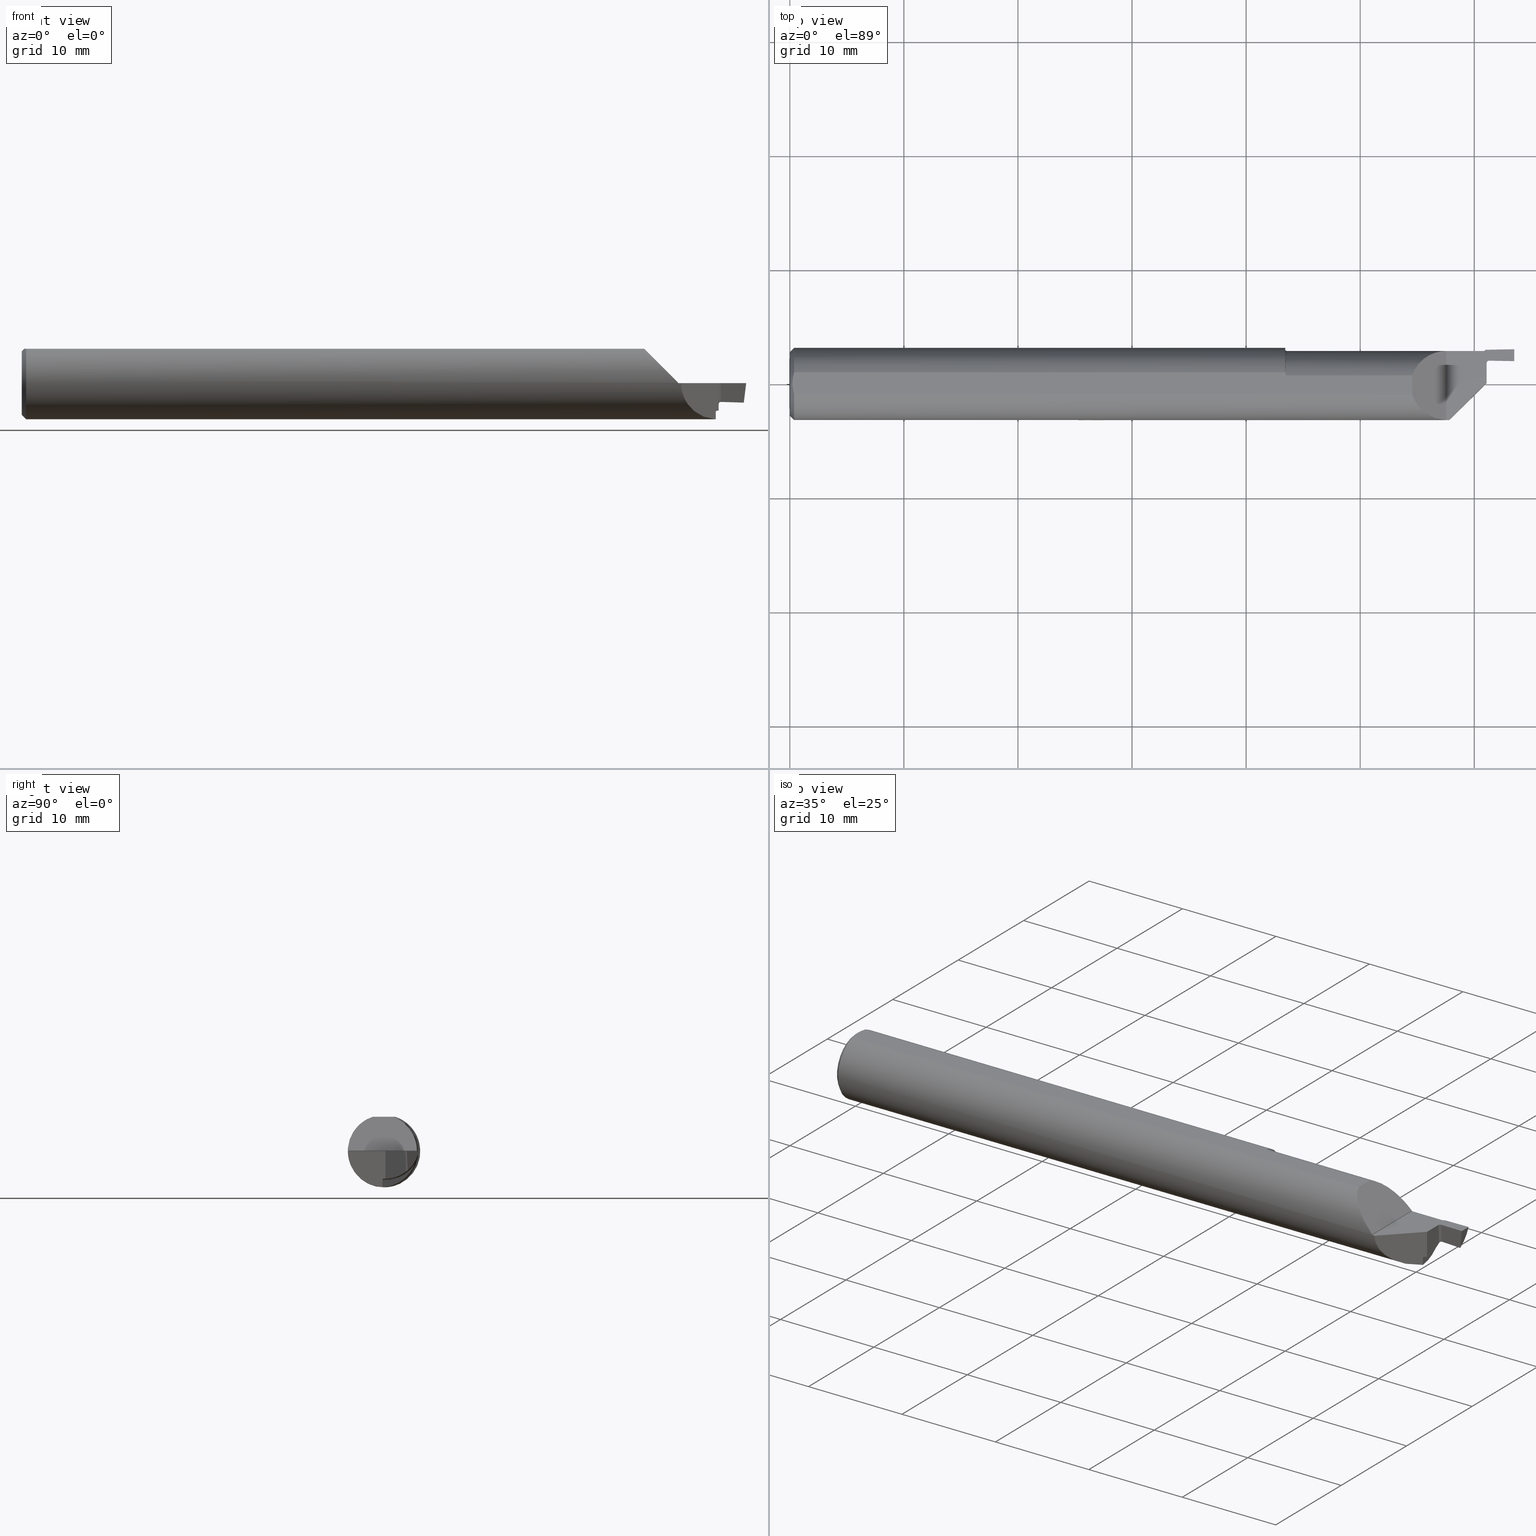
[diagram: canonical four-view strip — front | top / right | iso, engineering-drawing reading convention]
A machine part, canonical four-view strip (front | top / right | iso — engineering-drawing reading convention). The complete STEP part file that produces these views, byte-faithful:
ISO-10303-21;
HEADER;
FILE_DESCRIPTION (( 'STEP AP203' ),
    '1' );
FILE_NAME ('220055-FG250-040.STEP',
    '2024-06-10T22:25:10',
    ( '' ),
    ( '' ),
    'SwSTEP 2.0',
    'SolidWorks 2022',
    '' );
FILE_SCHEMA (( 'CONFIG_CONTROL_DESIGN' ));
ENDSEC;

DATA;
#1 = CARTESIAN_POINT ( 'NONE',  ( 0.01158016045613162459, -0.02568400999800457205, 0.1188499999999999973 ) ) ;
#2 = ORIENTED_EDGE ( 'NONE', *, *, #164, .F. ) ;
#3 = EDGE_CURVE ( 'NONE', #412, #144, #181, .T. ) ;
#4 = AXIS2_PLACEMENT_3D ( 'NONE', #467, #798, #675 ) ;
#5 = ORIENTED_EDGE ( 'NONE', *, *, #889, .F. ) ;
#6 = VECTOR ( 'NONE', #615, 39.37007874015748143 ) ;
#7 = CARTESIAN_POINT ( 'NONE',  ( 2.399579314965132770, 0.004831621480630721339, 0.02000000000000000736 ) ) ;
#8 = ADVANCED_FACE ( 'NONE', ( #842 ), #176, .F. ) ;
#9 = ORIENTED_EDGE ( 'NONE', *, *, #437, .T. ) ;
#10 = DIRECTION ( 'NONE',  ( 1.000000000000000000, 0.000000000000000000, -0.000000000000000000 ) ) ;
#11 = PERSON_AND_ORGANIZATION_ROLE ( 'design_owner' ) ;
#12 = ORIENTED_EDGE ( 'NONE', *, *, #215, .F. ) ;
#13 = ORIENTED_EDGE ( 'NONE', *, *, #16, .F. ) ;
#14 = PRODUCT ( '220055-FG250-040', '220055-FG250-040', '', ( #295 ) ) ;
#15 = DIRECTION ( 'NONE',  ( 1.000000000000000000, 1.113524997417498594E-16, -0.000000000000000000 ) ) ;
#16 = EDGE_CURVE ( 'NONE', #288, #484, #456, .T. ) ;
#17 = CARTESIAN_POINT ( 'NONE',  ( 2.394580076489350340, 0.004744359448444370256, 0.02000000000000000736 ) ) ;
#18 = ORIENTED_EDGE ( 'NONE', *, *, #603, .F. ) ;
#19 = DIRECTION ( 'NONE',  ( -0.9999998142845093474, -6.137997782498683738E-16, -0.0006094513490878209361 ) ) ;
#20 = VECTOR ( 'NONE', #282, 39.37007874015748143 ) ;
#21 = DATE_TIME_ROLE ( 'creation_date' ) ;
#22 = CARTESIAN_POINT ( 'NONE',  ( 2.394751877648227723, -0.005098122351772174828, -0.09959555190881562436 ) ) ;
#23 = CARTESIAN_POINT ( 'NONE',  ( 2.405043963730814305, 0.07375845365370749251, -0.07213655809346530834 ) ) ;
#24 = ORIENTED_EDGE ( 'NONE', *, *, #616, .T. ) ;
#25 = CC_DESIGN_PERSON_AND_ORGANIZATION_ASSIGNMENT ( #633, #216, ( #191 ) ) ;
#26 = CARTESIAN_POINT ( 'NONE',  ( 2.405000000000000249, 0.005149999999999994860, 0.000000000000000000 ) ) ;
#27 = CARTESIAN_POINT ( 'NONE',  ( 2.439031490114037748, 0.08220862131739901935, -0.06571516396452893594 ) ) ;
#28 = EDGE_CURVE ( 'NONE', #834, #234, #546, .T. ) ;
#29 = CARTESIAN_POINT ( 'NONE',  ( 2.395537994298262863, -0.004312005701737785766, -0.09665352178019671892 ) ) ;
#30 = VERTEX_POINT ( 'NONE', #104 ) ;
#31 = CARTESIAN_POINT ( 'NONE',  ( 2.405003523125127884, 0.07260500227089336511, -0.005613609509520605702 ) ) ;
#32 = ADVANCED_FACE ( 'NONE', ( #436 ), #720, .F. ) ;
#33 = PLANE ( 'NONE',  #319 ) ;
#34 = CARTESIAN_POINT ( 'NONE',  ( 2.405043458532401868, 0.07485130068071520204, -0.07130761855822236039 ) ) ;
#35 = VERTEX_POINT ( 'NONE', #448 ) ;
#36 = DIRECTION ( 'NONE',  ( 0.000000000000000000, 1.000000000000000000, 0.000000000000000000 ) ) ;
#37 = LOCAL_TIME ( 15, 25, 10.00000000000000000, #86 ) ;
#38 = PERSON_AND_ORGANIZATION ( #806, #785 ) ;
#39 = AXIS2_PLACEMENT_3D ( 'NONE', #835, #504, #422 ) ;
#40 = CARTESIAN_POINT ( 'NONE',  ( 2.148000000000000131, 0.02757490814094780071, 0.1188499999999999973 ) ) ;
#41 =( BOUNDED_CURVE ( )  B_SPLINE_CURVE ( 3, ( #866, #742, #185, #679 ),
 .UNSPECIFIED., .F., .T. ) 
 B_SPLINE_CURVE_WITH_KNOTS ( ( 4, 4 ),
 ( 1.572741771764518903, 2.197340308114101415 ),
 .UNSPECIFIED. ) 
 CURVE ( )  GEOMETRIC_REPRESENTATION_ITEM ( )  RATIONAL_B_SPLINE_CURVE ( ( 1.000000000000000000, 0.9677530943806926800, 0.9677530943806926800, 1.000000000000000000 ) ) 
 REPRESENTATION_ITEM ( '' )  );
#42 = CYLINDRICAL_SURFACE ( 'NONE', #690, 0.1150000000000000050 ) ;
#43 = ORIENTED_EDGE ( 'NONE', *, *, #101, .F. ) ;
#44 = DIRECTION ( 'NONE',  ( 0.000000000000000000, 1.000000000000000000, 0.000000000000000000 ) ) ;
#45 = LINE ( 'NONE', #851, #706 ) ;
#46 = ORIENTED_EDGE ( 'NONE', *, *, #477, .T. ) ;
#47 = DIRECTION ( 'NONE',  ( 0.000000000000000000, 0.000000000000000000, -1.000000000000000000 ) ) ;
#48 = CARTESIAN_POINT ( 'NONE',  ( 2.396862518741579517, 0.1124306764994948693, -0.02059320971210895634 ) ) ;
#49 = EDGE_CURVE ( 'NONE', #481, #412, #847, .T. ) ;
#50 = EDGE_CURVE ( 'NONE', #523, #634, #159, .T. ) ;
#51 = DIRECTION ( 'NONE',  ( 0.000000000000000000, 1.000000000000000000, 0.000000000000000000 ) ) ;
#52 = LINE ( 'NONE', #876, #113 ) ;
#53 = VECTOR ( 'NONE', #169, 39.37007874015748143 ) ;
#54 = APPROVAL_PERSON_ORGANIZATION ( #90, #460, #97 ) ;
#55 = ORIENTED_EDGE ( 'NONE', *, *, #59, .F. ) ;
#56 = AXIS2_PLACEMENT_3D ( 'NONE', #514, #109, #114 ) ;
#57 = DIRECTION ( 'NONE',  ( 0.000000000000000000, 1.000000000000000000, 0.000000000000000000 ) ) ;
#58 = CARTESIAN_POINT ( 'NONE',  ( 2.394730875153431526, -0.003894890230739353216, -0.1247892316271311808 ) ) ;
#59 = EDGE_CURVE ( 'NONE', #83, #564, #732, .T. ) ;
#60 = PLANE ( 'NONE',  #577 ) ;
#61 = EDGE_CURVE ( 'NONE', #224, #222, #362, .T. ) ;
#62 = FACE_OUTER_BOUND ( 'NONE', #209, .T. ) ;
#63 = DIRECTION ( 'NONE',  ( 0.000000000000000000, 1.000000000000000000, 0.000000000000000000 ) ) ;
#64 = DIRECTION ( 'NONE',  ( 1.000000000000000000, 0.000000000000000000, 0.000000000000000000 ) ) ;
#65 = ORIENTED_EDGE ( 'NONE', *, *, #218, .T. ) ;
#66 = CARTESIAN_POINT ( 'NONE',  ( 1.709999999999999964, 0.1188492383597805208, 0.000000000000000000 ) ) ;
#67 = CARTESIAN_POINT ( 'NONE',  ( 2.405000000000000249, 0.005149999999999994860, -0.09499978237659115199 ) ) ;
#68 = ORIENTED_EDGE ( 'NONE', *, *, #747, .T. ) ;
#69 = CARTESIAN_POINT ( 'NONE',  ( 2.607570889261497715, 0.1217268952162244983, 0.000000000000000000 ) ) ;
#70 = CARTESIAN_POINT ( 'NONE',  ( 2.413000000000000256, 0.07236661038418341907, 0.000000000000000000 ) ) ;
#71 = ORIENTED_EDGE ( 'NONE', *, *, #286, .T. ) ;
#72 = ORIENTED_EDGE ( 'NONE', *, *, #510, .F. ) ;
#73 = APPROVAL_PERSON_ORGANIZATION ( #655, #519, #419 ) ;
#74 = CARTESIAN_POINT ( 'NONE',  ( 2.413379501196029953, 0.09410325710333931892, -0.3934609555193290253 ) ) ;
#75 = APPROVAL_DATE_TIME ( #505, #519 ) ;
#76 = ORIENTED_EDGE ( 'NONE', *, *, #262, .T. ) ;
#77 = VECTOR ( 'NONE', #268, 39.37007874015748854 ) ;
#78 = ORIENTED_EDGE ( 'NONE', *, *, #120, .F. ) ;
#79 = B_SPLINE_CURVE_WITH_KNOTS ( 'NONE', 3,
 ( #496, #407, #628, #1, #344, #817 ),
 .UNSPECIFIED., .F., .F.,
 ( 4, 2, 4 ),
 ( 0.003915279494386507235, 0.004402528257931054290, 0.004889777021475600477 ),
 .UNSPECIFIED. ) ;
#80 = DIRECTION ( 'NONE',  ( -0.000000000000000000, -0.000000000000000000, 1.000000000000000000 ) ) ;
#81 = CALENDAR_DATE ( 2024, 10, 6 ) ;
#82 = ORIENTED_EDGE ( 'NONE', *, *, #465, .F. ) ;
#83 = VERTEX_POINT ( 'NONE', #22 ) ;
#84 = EDGE_CURVE ( 'NONE', #288, #207, #826, .T. ) ;
#85 = CARTESIAN_POINT ( 'NONE',  ( 2.395000000000000018, 0.1188492383597805901, 0.000000000000000000 ) ) ;
#86 = COORDINATED_UNIVERSAL_TIME_OFFSET ( 8, 0, .BEHIND. ) ;
#87 = ORIENTED_EDGE ( 'NONE', *, *, #845, .F. ) ;
#88 = VERTEX_POINT ( 'NONE', #672 ) ;
#89 = CARTESIAN_POINT ( 'NONE',  ( 1.710866796786096655, 0.02034732159406403562, -0.1232801871523465098 ) ) ;
#90 = PERSON_AND_ORGANIZATION ( #806, #785 ) ;
#91 = FACE_OUTER_BOUND ( 'NONE', #796, .T. ) ;
#92 = CARTESIAN_POINT ( 'NONE',  ( 2.405000000000000249, 0.07236661038418341907, -0.07315675900842447121 ) ) ;
#93 = ORIENTED_EDGE ( 'NONE', *, *, #747, .F. ) ;
#94 = VECTOR ( 'NONE', #553, 39.37007874015748143 ) ;
#95 = CARTESIAN_POINT ( 'NONE',  ( 2.265000000000000124, 0.000000000000000000, 0.000000000000000000 ) ) ;
#96 = VECTOR ( 'NONE', #370, 39.37007874015748143 ) ;
#97 = APPROVAL_ROLE ( '' ) ;
#98 = CARTESIAN_POINT ( 'NONE',  ( 2.274999999999999467, -0.1248500000000000026, 0.000000000000000000 ) ) ;
#99 = CARTESIAN_POINT ( 'NONE',  ( 2.399999999999999911, 0.1138492383597806412, 0.000000000000000000 ) ) ;
#100 = ORIENTED_EDGE ( 'NONE', *, *, #3, .F. ) ;
#101 = EDGE_CURVE ( 'NONE', #659, #595, #45, .T. ) ;
#102 = CARTESIAN_POINT ( 'NONE',  ( 1.713488581732707239, -0.001301457453720085812, -0.1248446920006879152 ) ) ;
#103 = COORDINATED_UNIVERSAL_TIME_OFFSET ( 8, 0, .BEHIND. ) ;
#104 = CARTESIAN_POINT ( 'NONE',  ( 2.148000000000000131, -0.03823872382807772669, 0.1188499999999999973 ) ) ;
#105 = CARTESIAN_POINT ( 'NONE',  ( 0.01500000000000023190, 0.03823872382807772669, 0.1188499999999999973 ) ) ;
#106 = EDGE_LOOP ( 'NONE', ( #213, #116, #46, #755, #772, #568 ) ) ;
#107 = CARTESIAN_POINT ( 'NONE',  ( 1.709999999999999964, 0.000000000000000000, 0.000000000000000000 ) ) ;
#108 = EDGE_CURVE ( 'NONE', #564, #412, #287, .T. ) ;
#109 = DIRECTION ( 'NONE',  ( -1.000000000000000000, -0.000000000000000000, -0.000000000000000000 ) ) ;
#110 = CARTESIAN_POINT ( 'NONE',  ( 2.405043712620790863, 0.07430673115627900449, -0.07172453180593980904 ) ) ;
#111 = ORIENTED_EDGE ( 'NONE', *, *, #468, .F. ) ;
#112 = CARTESIAN_POINT ( 'NONE',  ( 1.715000000000000080, -0.01115076164021948195, 0.000000000000000000 ) ) ;
#113 = VECTOR ( 'NONE', #261, 39.37007874015748854 ) ;
#114 = DIRECTION ( 'NONE',  ( 0.000000000000000000, 0.000000000000000000, -1.000000000000000000 ) ) ;
#115 = B_SPLINE_CURVE_WITH_KNOTS ( 'NONE', 3,
 ( #856, #244, #470, #612 ),
 .UNSPECIFIED., .F., .F.,
 ( 4, 4 ),
 ( 0.000000000000000000, 2.623388554099567976E-05 ),
 .UNSPECIFIED. ) ;
#116 = ORIENTED_EDGE ( 'NONE', *, *, #267, .T. ) ;
#117 = ADVANCED_FACE ( 'NONE', ( #91 ), #33, .F. ) ;
#118 = CARTESIAN_POINT ( 'NONE',  ( 1.715000000000000080, -0.003894890230802756925, -0.1247892316271320273 ) ) ;
#119 = CARTESIAN_POINT ( 'NONE',  ( 2.399860864193811949, 0.1175523973016127377, -0.003107638349931563133 ) ) ;
#120 = EDGE_CURVE ( 'NONE', #151, #484, #787, .T. ) ;
#121 = ORIENTED_EDGE ( 'NONE', *, *, #854, .T. ) ;
#122 = CARTESIAN_POINT ( 'NONE',  ( 1.714128168530276053, -0.003067870172105852025, -0.1248125831559575294 ) ) ;
#123 = DIRECTION ( 'NONE',  ( 0.000000000000000000, 1.000000000000000000, 0.000000000000000000 ) ) ;
#124 = DIRECTION ( 'NONE',  ( 1.000000000000000000, 1.113524997417498594E-16, -0.000000000000000000 ) ) ;
#125 = AXIS2_PLACEMENT_3D ( 'NONE', #566, #820, #63 ) ;
#126 = CARTESIAN_POINT ( 'NONE',  ( 2.148000000000000131, 0.02757490814094780071, 0.1188499999999999973 ) ) ;
#127 = EDGE_CURVE ( 'NONE', #708, #579, #115, .T. ) ;
#128 = EDGE_CURVE ( 'NONE', #497, #708, #41, .T. ) ;
#129 = CARTESIAN_POINT ( 'NONE',  ( 1.715000000000000080, -0.01115076164021947848, 0.000000000000000000 ) ) ;
#130 = LINE ( 'NONE', #270, #94 ) ;
#131 =( BOUNDED_CURVE ( )  B_SPLINE_CURVE ( 3, ( #58, #201, #266, #479 ),
 .UNSPECIFIED., .F., .F. ) 
 B_SPLINE_CURVE_WITH_KNOTS ( ( 4, 4 ),
 ( 1.601997946940237894, 1.611641662765203709 ),
 .UNSPECIFIED. ) 
 CURVE ( )  GEOMETRIC_REPRESENTATION_ITEM ( )  RATIONAL_B_SPLINE_CURVE ( ( 1.000000000000000000, 0.9999922499104398899, 0.9999922499104398899, 1.000000000000000000 ) ) 
 REPRESENTATION_ITEM ( '' )  );
#132 = DIRECTION ( 'NONE',  ( 0.7071067811865466846, -0.000000000000000000, 0.7071067811865483499 ) ) ;
#133 = EDGE_CURVE ( 'NONE', #30, #151, #684, .T. ) ;
#134 = FACE_OUTER_BOUND ( 'NONE', #560, .T. ) ;
#135 = ORIENTED_EDGE ( 'NONE', *, *, #559, .T. ) ;
#136 = DIRECTION ( 'NONE',  ( 0.000000000000000000, -1.000000000000000000, 0.000000000000000000 ) ) ;
#137 = CARTESIAN_POINT ( 'NONE',  ( 2.401443567172405924, 0.001593567172405820249, -0.09496677274281281611 ) ) ;
#138 = ORIENTED_EDGE ( 'NONE', *, *, #334, .T. ) ;
#139 = AXIS2_PLACEMENT_3D ( 'NONE', #195, #211, #414 ) ;
#140 = VECTOR ( 'NONE', #15, 39.37007874015748143 ) ;
#141 = ADVANCED_FACE ( 'NONE', ( #463 ), #333, .T. ) ;
#142 = CARTESIAN_POINT ( 'NONE',  ( 2.493887697916219004, 0.1017656272593487343, -0.04978070564274449800 ) ) ;
#143 = CARTESIAN_POINT ( 'NONE',  ( 2.265000000000000124, -0.1248362927998104277, 0.001850000000000442436 ) ) ;
#144 = VERTEX_POINT ( 'NONE', #871 ) ;
#145 = CARTESIAN_POINT ( 'NONE',  ( 2.413000000000000256, 0.07236661038418341907, -0.1248500000000000026 ) ) ;
#146 = ORIENTED_EDGE ( 'NONE', *, *, #164, .T. ) ;
#147 = VERTEX_POINT ( 'NONE', #398 ) ;
#148 = CARTESIAN_POINT ( 'NONE',  ( 2.405000000000000249, 0.07236661038418341907, 0.000000000000000000 ) ) ;
#149 = CIRCLE ( 'NONE', #733, 0.1248500000000000026 ) ;
#150 = AXIS2_PLACEMENT_3D ( 'NONE', #865, #804, #51 ) ;
#151 = VERTEX_POINT ( 'NONE', #812 ) ;
#152 = VECTOR ( 'NONE', #728, 39.37007874015748143 ) ;
#153 = CALENDAR_DATE ( 2024, 10, 6 ) ;
#154 = ORIENTED_EDGE ( 'NONE', *, *, #657, .T. ) ;
#155 = ORIENTED_EDGE ( 'NONE', *, *, #508, .T. ) ;
#156 = CARTESIAN_POINT ( 'NONE',  ( 1.709999999999954223, 0.04425422002747203543, -0.1171691146422145641 ) ) ;
#157 = COORDINATED_UNIVERSAL_TIME_OFFSET ( 8, 0, .BEHIND. ) ;
#158 = CARTESIAN_POINT ( 'NONE',  ( 2.405000000000000249, 0.07236661038418341907, -0.1248500000000000026 ) ) ;
#159 =( BOUNDED_CURVE ( )  B_SPLINE_CURVE ( 3, ( #392, #27, #227, #163 ),
 .UNSPECIFIED., .F., .T. ) 
 B_SPLINE_CURVE_WITH_KNOTS ( ( 4, 4 ),
 ( 0.8656294014320184971, 0.8965224454844572533 ),
 .UNSPECIFIED. ) 
 CURVE ( )  GEOMETRIC_REPRESENTATION_ITEM ( )  RATIONAL_B_SPLINE_CURVE ( ( 1.000000000000000000, 0.9999204699004071717, 0.9999204699004071717, 1.000000000000000000 ) ) 
 REPRESENTATION_ITEM ( '' )  );
#160 = CARTESIAN_POINT ( 'NONE',  ( 2.408501492534552924, 0.08156538939853816284, -0.06582703072981029024 ) ) ;
#161 = ORIENTED_EDGE ( 'NONE', *, *, #215, .T. ) ;
#162 = CARTESIAN_POINT ( 'NONE',  ( 1.711914333455624160, 0.007945130463938975679, -0.1246218459314067800 ) ) ;
#163 = CARTESIAN_POINT ( 'NONE',  ( 2.491740107342910182, 0.08134294317151198606, -0.06727142725722290439 ) ) ;
#164 = EDGE_CURVE ( 'NONE', #314, #417, #811, .T. ) ;
#165 = CARTESIAN_POINT ( 'NONE',  ( 2.393544250148883723, 0.1096411237135893474, -0.03234777159303669353 ) ) ;
#166 = ORIENTED_EDGE ( 'NONE', *, *, #128, .T. ) ;
#167 = CIRCLE ( 'NONE', #680, 0.004999999999999810152 ) ;
#168 = AXIS2_PLACEMENT_3D ( 'NONE', #394, #325, #469 ) ;
#169 = DIRECTION ( 'NONE',  ( 0.000000000000000000, -1.000000000000000000, 0.000000000000000000 ) ) ;
#170 = ADVANCED_FACE ( 'NONE', ( #193 ), #391, .F. ) ;
#171 = APPROVAL_DATE_TIME ( #870, #442 ) ;
#172 = CARTESIAN_POINT ( 'NONE',  ( 0.01500000000000023190, 0.000000000000000000, 0.000000000000000000 ) ) ;
#173 = LINE ( 'NONE', #378, #839 ) ;
#174 = ORIENTED_EDGE ( 'NONE', *, *, #339, .F. ) ;
#175 = PLANE ( 'NONE',  #488 ) ;
#176 = PLANE ( 'NONE',  #473 ) ;
#177 = DIRECTION ( 'NONE',  ( 0.01745240643726934937, -0.9998476951563914916, 0.000000000000000000 ) ) ;
#178 = ORIENTED_EDGE ( 'NONE', *, *, #573, .F. ) ;
#179 = DIRECTION ( 'NONE',  ( -0.7071067811865461294, 0.7071067811865490160, 0.000000000000000000 ) ) ;
#180 = DIMENSIONAL_EXPONENTS ( 1.000000000000000000, 0.000000000000000000, 0.000000000000000000, 0.000000000000000000, 0.000000000000000000, 0.000000000000000000, 0.000000000000000000 ) ;
#181 = LINE ( 'NONE', #656, #96 ) ;
#182 = CARTESIAN_POINT ( 'NONE',  ( 2.395000000000000018, 0.1111817981856617066, -0.02568549797935074791 ) ) ;
#183 = ORIENTED_EDGE ( 'NONE', *, *, #617, .F. ) ;
#184 = DIRECTION ( 'NONE',  ( -0.0006090802009083879243, -0.03489418134011375294, 0.9993908270190957621 ) ) ;
#185 = CARTESIAN_POINT ( 'NONE',  ( 2.405000000000000249, 0.05264633166636788209, -0.08742880791277779506 ) ) ;
#186 = ORIENTED_EDGE ( 'NONE', *, *, #339, .T. ) ;
#187 = CARTESIAN_POINT ( 'NONE',  ( 2.405001483111418370, 0.07251633231845677763, -0.0002790132549045454898 ) ) ;
#188 = CARTESIAN_POINT ( 'NONE',  ( 0.01500000000000023190, 0.03823872382807772669, 0.1188499999999999973 ) ) ;
#189 = ADVANCED_FACE ( 'NONE', ( #401 ), #60, .F. ) ;
#190 = DIRECTION ( 'NONE',  ( -0.0006090802009083879243, -0.03489418134011375294, 0.9993908270190957621 ) ) ;
#191 = SECURITY_CLASSIFICATION ( '', '', #423 ) ;
#192 = EDGE_CURVE ( 'NONE', #753, #844, #558, .T. ) ;
#193 = FACE_OUTER_BOUND ( 'NONE', #499, .T. ) ;
#194 = AXIS2_PLACEMENT_3D ( 'NONE', #145, #80, #272 ) ;
#195 = CARTESIAN_POINT ( 'NONE',  ( 0.000000000000000000, 0.000000000000000000, 0.000000000000000000 ) ) ;
#196 = CC_DESIGN_PERSON_AND_ORGANIZATION_ASSIGNMENT ( #513, #11, ( #14 ) ) ;
#197 = CARTESIAN_POINT ( 'NONE',  ( 1.709999999999999964, -0.01115076164021948195, 0.000000000000000000 ) ) ;
#198 = DIRECTION ( 'NONE',  ( -1.000000000000000000, 0.000000000000000000, 0.000000000000000000 ) ) ;
#199 = ORIENTED_EDGE ( 'NONE', *, *, #322, .T. ) ;
#200 = LINE ( 'NONE', #148, #299 ) ;
#201 = CARTESIAN_POINT ( 'NONE',  ( 2.394737877174477614, -0.004296035747810398805, -0.1247767111737649315 ) ) ;
#202 = ORIENTED_EDGE ( 'NONE', *, *, #490, .T. ) ;
#203 = ADVANCED_FACE ( 'NONE', ( #543 ), #259, .T. ) ;
#204 = ADVANCED_BREP_SHAPE_REPRESENTATION ( '220055-FG250-040', ( #771, #424 ), #809 ) ;
#205 = LINE ( 'NONE', #485, #269 ) ;
#206 = DIRECTION ( 'NONE',  ( -1.000000000000000000, -0.000000000000000000, 0.000000000000000000 ) ) ;
#207 = VERTEX_POINT ( 'NONE', #405 ) ;
#208 = VECTOR ( 'NONE', #387, 39.37007874015748854 ) ;
#209 = EDGE_LOOP ( 'NONE', ( #155, #186, #756, #396, #305, #82, #121, #614, #537, #71, #600, #300, #635 ) ) ;
#210 = FACE_OUTER_BOUND ( 'NONE', #351, .T. ) ;
#211 = DIRECTION ( 'NONE',  ( -1.000000000000000000, -0.000000000000000000, -0.000000000000000000 ) ) ;
#212 = EDGE_LOOP ( 'NONE', ( #415, #457, #695, #347 ) ) ;
#213 = ORIENTED_EDGE ( 'NONE', *, *, #127, .T. ) ;
#214 = DIRECTION ( 'NONE',  ( 1.000000000000000000, 1.113524997417498594E-16, -0.000000000000000000 ) ) ;
#215 = EDGE_CURVE ( 'NONE', #853, #844, #551, .T. ) ;
#216 = PERSON_AND_ORGANIZATION_ROLE ( 'classification_officer' ) ;
#217 = ORIENTED_EDGE ( 'NONE', *, *, #494, .T. ) ;
#218 = EDGE_CURVE ( 'NONE', #643, #224, #606, .T. ) ;
#219 = ORIENTED_EDGE ( 'NONE', *, *, #762, .T. ) ;
#220 = UNCERTAINTY_MEASURE_WITH_UNIT (LENGTH_MEASURE( 1.000000000000000082E-05 ), #567, 'distance_accuracy_value', 'NONE');
#221 = LINE ( 'NONE', #69, #527 ) ;
#222 = VERTEX_POINT ( 'NONE', #187 ) ;
#223 = AXIS2_PLACEMENT_3D ( 'NONE', #129, #124, #748 ) ;
#224 = VERTEX_POINT ( 'NONE', #474 ) ;
#225 = CARTESIAN_POINT ( 'NONE',  ( 2.405245147174139397, -0.1572586291140297410, -0.4022423266069747316 ) ) ;
#226 =( NAMED_UNIT ( * ) PLANE_ANGLE_UNIT ( ) SI_UNIT ( $, .RADIAN. ) );
#227 = CARTESIAN_POINT ( 'NONE',  ( 2.465220518938218142, 0.08177890802375221979, -0.06650019045178200139 ) ) ;
#228 = CARTESIAN_POINT ( 'NONE',  ( 2.405042565455771442, 0.07676536813840875717, -0.06984224077939192588 ) ) ;
#229 = EDGE_LOOP ( 'NONE', ( #639, #138, #358, #737, #93, #574, #450, #293, #433, #860 ) ) ;
#230 = CARTESIAN_POINT ( 'NONE',  ( 1.709999999999999964, 0.05327609239522881901, -0.1129122689484851477 ) ) ;
#231 =( NAMED_UNIT ( * ) SI_UNIT ( $, .STERADIAN. ) SOLID_ANGLE_UNIT ( ) );
#232 = DIRECTION ( 'NONE',  ( 1.000000000000000000, 0.000000000000000000, 0.000000000000000000 ) ) ;
#233 = CARTESIAN_POINT ( 'NONE',  ( 1.710754412305492300, 0.03420765519299448498, 0.1188500000000000389 ) ) ;
#234 = VERTEX_POINT ( 'NONE', #253 ) ;
#235 = ADVANCED_FACE ( 'NONE', ( #540 ), #688, .F. ) ;
#236 = CARTESIAN_POINT ( 'NONE',  ( 1.715000000000000080, 0.02757490814094750234, 0.1188500000000000389 ) ) ;
#237 = LOCAL_TIME ( 15, 25, 10.00000000000000000, #707 ) ;
#238 = APPLICATION_PROTOCOL_DEFINITION ( 'international standard', 'config_control_design', 1994, #492 ) ;
#239 = CARTESIAN_POINT ( 'NONE',  ( 2.394751877648227723, -0.005098122351772174828, -0.1247458682621847836 ) ) ;
#240 = CARTESIAN_POINT ( 'NONE',  ( 1.714473844127619051, 0.02757490814094750581, 0.1188500000000000389 ) ) ;
#241 = VERTEX_POINT ( 'NONE', #739 ) ;
#242 = AXIS2_PLACEMENT_3D ( 'NONE', #884, #10, #554 ) ;
#243 = CARTESIAN_POINT ( 'NONE',  ( 2.405001483111418370, 0.07251633231845677763, -0.0002790132549045454898 ) ) ;
#244 = CARTESIAN_POINT ( 'NONE',  ( 2.405000000000000249, 0.07264942299141172177, -0.07295208059495540687 ) ) ;
#245 = DIRECTION ( 'NONE',  ( -1.113524997417498594E-16, 1.000000000000000000, 0.000000000000000000 ) ) ;
#246 = ORIENTED_EDGE ( 'NONE', *, *, #613, .T. ) ;
#247 = PLANE ( 'NONE',  #443 ) ;
#248 = CALENDAR_DATE ( 2024, 10, 6 ) ;
#249 = DIRECTION ( 'NONE',  ( -0.7071067811865489050, -0.7071067811865460184, 0.000000000000000000 ) ) ;
#250 = CARTESIAN_POINT ( 'NONE',  ( 1.710379839581037453, 0.03621100365931469167, 0.1188499999999999973 ) ) ;
#251 = ORIENTED_EDGE ( 'NONE', *, *, #284, .F. ) ;
#252 = CARTESIAN_POINT ( 'NONE',  ( 2.413179269318581177, 0.08263198052702930285, -0.06491653509516770448 ) ) ;
#253 = CARTESIAN_POINT ( 'NONE',  ( 2.265000000000000124, 0.1138355476100341018, 0.001850000000000401670 ) ) ;
#254 = ORIENTED_EDGE ( 'NONE', *, *, #459, .T. ) ;
#255 = CARTESIAN_POINT ( 'NONE',  ( 0.009546064770316114653, 0.01302659621470520467, 0.1188499999999999696 ) ) ;
#256 = AXIS2_PLACEMENT_3D ( 'NONE', #483, #346, #638 ) ;
#257 = SHAPE_DEFINITION_REPRESENTATION ( #773, #204 ) ;
#258 = CIRCLE ( 'NONE', #332, 0.1150000000000000050 ) ;
#259 = PLANE ( 'NONE',  #486 ) ;
#260 = FACE_OUTER_BOUND ( 'NONE', #384, .T. ) ;
#261 = DIRECTION ( 'NONE',  ( 0.1217869383157133556, -0.03676811390802551399, 0.9918750160455352960 ) ) ;
#262 = EDGE_CURVE ( 'NONE', #634, #643, #52, .T. ) ;
#263 = EDGE_CURVE ( 'NONE', #523, #224, #545, .T. ) ;
#264 = ORIENTED_EDGE ( 'NONE', *, *, #330, .T. ) ;
#265 = CARTESIAN_POINT ( 'NONE',  ( 2.398622590078498984, 0.1143413935831804479, -0.01523825444003027926 ) ) ;
#266 = CARTESIAN_POINT ( 'NONE',  ( 2.394744878060333981, -0.004697116229897637697, -0.1247622566067576738 ) ) ;
#267 = EDGE_CURVE ( 'NONE', #579, #88, #476, .T. ) ;
#268 = DIRECTION ( 'NONE',  ( -0.9998476951563912696, 0.01745240643727497681, -0.000000000000000000 ) ) ;
#269 = VECTOR ( 'NONE', #413, 39.37007874015748143 ) ;
#270 = CARTESIAN_POINT ( 'NONE',  ( 2.148000000000000131, 0.03823872382807772669, 0.1188499999999999973 ) ) ;
#271 = AXIS2_PLACEMENT_3D ( 'NONE', #172, #232, #312 ) ;
#272 = DIRECTION ( 'NONE',  ( 1.000000000000000000, 0.000000000000000000, 0.000000000000000000 ) ) ;
#273 = ADVANCED_FACE ( 'NONE', ( #627 ), #769, .F. ) ;
#274 = DIRECTION ( 'NONE',  ( -0.9998476951563914916, -0.01745240643726934937, 0.000000000000000000 ) ) ;
#275 = LINE ( 'NONE', #618, #487 ) ;
#276 = ORIENTED_EDGE ( 'NONE', *, *, #743, .F. ) ;
#277 = CARTESIAN_POINT ( 'NONE',  ( 0.000000000000000000, 0.000000000000000000, -0.1098499999999999199 ) ) ;
#278 = DIRECTION ( 'NONE',  ( 0.01745240643727061919, -0.9998476951563913806, 0.000000000000000000 ) ) ;
#279 =( BOUNDED_CURVE ( )  B_SPLINE_CURVE ( 3, ( #533, #313, #522, #388 ),
 .UNSPECIFIED., .F., .F. ) 
 B_SPLINE_CURVE_WITH_KNOTS ( ( 4, 4 ),
 ( 1.628875945332859176, 2.768961487535409383 ),
 .UNSPECIFIED. ) 
 CURVE ( )  GEOMETRIC_REPRESENTATION_ITEM ( )  RATIONAL_B_SPLINE_CURVE ( ( 1.000000000000000000, 0.8945852624901299288, 0.8945852624901299288, 1.000000000000000000 ) ) 
 REPRESENTATION_ITEM ( '' )  );
#280 = AXIS2_PLACEMENT_3D ( 'NONE', #685, #555, #880 ) ;
#281 = ORIENTED_EDGE ( 'NONE', *, *, #49, .T. ) ;
#282 = DIRECTION ( 'NONE',  ( 1.000000000000000000, 1.113524997417498594E-16, -0.000000000000000000 ) ) ;
#283 = LENGTH_MEASURE_WITH_UNIT ( LENGTH_MEASURE( 0.02539999999999999897 ), #580 );
#284 = EDGE_CURVE ( 'NONE', #207, #509, #418, .T. ) ;
#285 = ORIENTED_EDGE ( 'NONE', *, *, #399, .F. ) ;
#286 = EDGE_CURVE ( 'NONE', #484, #659, #650, .T. ) ;
#287 =( BOUNDED_CURVE ( )  B_SPLINE_CURVE ( 3, ( #239, #441, #525, #98 ),
 .UNSPECIFIED., .F., .F. ) 
 B_SPLINE_CURVE_WITH_KNOTS ( ( 4, 4 ),
 ( 4.753234316354996380, 6.283185307179586232 ),
 .UNSPECIFIED. ) 
 CURVE ( )  GEOMETRIC_REPRESENTATION_ITEM ( )  RATIONAL_B_SPLINE_CURVE ( ( 1.000000000000000000, 0.8142662183690925204, 0.8142662183690925204, 1.000000000000000000 ) ) 
 REPRESENTATION_ITEM ( '' )  );
#288 = VERTEX_POINT ( 'NONE', #277 ) ;
#289 = DIRECTION ( 'NONE',  ( 0.9998476951563914916, 0.01745240643726935284, 0.000000000000000000 ) ) ;
#290 = DATE_AND_TIME ( #576, #37 ) ;
#291 = EDGE_LOOP ( 'NONE', ( #366, #161, #285, #493, #5 ) ) ;
#292 = ADVANCED_FACE ( 'NONE', ( #625 ), #623, .F. ) ;
#293 = ORIENTED_EDGE ( 'NONE', *, *, #128, .F. ) ;
#294 = CARTESIAN_POINT ( 'NONE',  ( 1.711178079990818279, 0.01539321907340735103, -0.1239975791389464205 ) ) ;
#295 = MECHANICAL_CONTEXT ( 'NONE', #682, 'mechanical' ) ;
#296 = ORIENTED_EDGE ( 'NONE', *, *, #490, .F. ) ;
#297 = AXIS2_PLACEMENT_3D ( 'NONE', #563, #206, #821 ) ;
#298 = DIRECTION ( 'NONE',  ( -0.9998476951563914916, -0.01745240643726934937, 0.000000000000000000 ) ) ;
#299 = VECTOR ( 'NONE', #136, 39.37007874015748143 ) ;
#300 = ORIENTED_EDGE ( 'NONE', *, *, #845, .T. ) ;
#301 = CARTESIAN_POINT ( 'NONE',  ( 2.405005047996914946, 0.07265076257643027224, -0.008282853068160962728 ) ) ;
#302 = CARTESIAN_POINT ( 'NONE',  ( 2.413139705841341964, 0.08036539043400320326, 3.201384367575308459E-18 ) ) ;
#303 = EDGE_CURVE ( 'NONE', #310, #481, #200, .T. ) ;
#304 = CARTESIAN_POINT ( 'NONE',  ( 2.397454914098147150, -0.002395085901852431198, -0.09513542504145189316 ) ) ;
#305 = ORIENTED_EDGE ( 'NONE', *, *, #3, .T. ) ;
#306 = CARTESIAN_POINT ( 'NONE',  ( 2.399666848159061061, -0.0001831518409391941975, -0.09489057570781525563 ) ) ;
#307 = APPROVAL_STATUS ( 'not_yet_approved' ) ;
#308 = CARTESIAN_POINT ( 'NONE',  ( 2.405039367740892331, 0.07460823648977599198, -0.0002059503887026006158 ) ) ;
#309 = CARTESIAN_POINT ( 'NONE',  ( 2.392923790597901501, 0.1076590066416639874, -0.03900380564980964609 ) ) ;
#310 = VERTEX_POINT ( 'NONE', #570 ) ;
#311 = LINE ( 'NONE', #318, #140 ) ;
#312 = DIRECTION ( 'NONE',  ( 0.000000000000000000, 0.000000000000000000, -1.000000000000000000 ) ) ;
#313 = CARTESIAN_POINT ( 'NONE',  ( 2.393854858637863625, 0.04629206233410948501, -0.1218711106522970544 ) ) ;
#314 = VERTEX_POINT ( 'NONE', #66 ) ;
#315 = AXIS2_PLACEMENT_3D ( 'NONE', #409, #214, #501 ) ;
#316 = CONICAL_SURFACE ( 'NONE', #824, 0.1098499999999999199, 0.7853981633974431720 ) ;
#317 = EDGE_CURVE ( 'NONE', #634, #788, #661, .T. ) ;
#318 = CARTESIAN_POINT ( 'NONE',  ( 2.399999999999999911, 0.1138492383597806412, 0.000000000000000000 ) ) ;
#319 = AXIS2_PLACEMENT_3D ( 'NONE', #158, #790, #786 ) ;
#320 = APPROVAL_ROLE ( '' ) ;
#321 = CARTESIAN_POINT ( 'NONE',  ( 2.165141516003344258, 0.08018262773649612041, 0.1017084839966559406 ) ) ;
#322 = EDGE_CURVE ( 'NONE', #853, #849, #632, .T. ) ;
#323 = CARTESIAN_POINT ( 'NONE',  ( 2.609547330947974420, 0.008496626832457278636, 0.02000000000000000736 ) ) ;
#324 = ORIENTED_EDGE ( 'NONE', *, *, #317, .T. ) ;
#325 = DIRECTION ( 'NONE',  ( -1.000000000000000000, -0.000000000000000000, -0.000000000000000000 ) ) ;
#326 = DIRECTION ( 'NONE',  ( -1.000000000000000000, -1.113524997417498594E-16, 0.000000000000000000 ) ) ;
#327 = ORIENTED_EDGE ( 'NONE', *, *, #284, .T. ) ;
#328 = CARTESIAN_POINT ( 'NONE',  ( 1.710170960735225121, 0.03823872382821605354, 0.1188499999999555051 ) ) ;
#329 = CARTESIAN_POINT ( 'NONE',  ( 2.265000000000000124, 0.2248499999999999943, 0.001850000000000401670 ) ) ;
#330 = EDGE_CURVE ( 'NONE', #708, #310, #205, .T. ) ;
#331 = CARTESIAN_POINT ( 'NONE',  ( 1.714459317357118318, -0.003597743371579664642, -0.1247984334200071821 ) ) ;
#332 = AXIS2_PLACEMENT_3D ( 'NONE', #7, #345, #375 ) ;
#333 = CYLINDRICAL_SURFACE ( 'NONE', #669, 0.1250000000000000555 ) ;
#334 = EDGE_CURVE ( 'NONE', #753, #788, #221, .T. ) ;
#335 = CARTESIAN_POINT ( 'NONE',  ( 1.709999999999999964, 0.1188492383597805208, 0.000000000000000000 ) ) ;
#336 = CYLINDRICAL_SURFACE ( 'NONE', #280, 0.007999999999999981085 ) ;
#337 = DIRECTION ( 'NONE',  ( 0.7071067811865483499, 0.000000000000000000, -0.7071067811865466846 ) ) ;
#338 = CYLINDRICAL_SURFACE ( 'NONE', #139, 0.1248500000000000026 ) ;
#339 = EDGE_CURVE ( 'NONE', #864, #404, #697, .T. ) ;
#340 = PLANE ( 'NONE',  #242 ) ;
#341 = CONICAL_SURFACE ( 'NONE', #444, 0.1098499999999999199, 0.7853981633974431720 ) ;
#342 = AXIS2_PLACEMENT_3D ( 'NONE', #534, #789, #850 ) ;
#343 = VECTOR ( 'NONE', #869, 39.37007874015748143 ) ;
#344 = CARTESIAN_POINT ( 'NONE',  ( 0.01310613948468477771, -0.03205524117839877313, 0.1188499999999999973 ) ) ;
#345 = DIRECTION ( 'NONE',  ( 0.9998476951563914916, 0.01745240643726934937, -0.000000000000000000 ) ) ;
#346 = DIRECTION ( 'NONE',  ( -0.9998476951563914916, -0.01745240643726934937, 0.000000000000000000 ) ) ;
#347 = ORIENTED_EDGE ( 'NONE', *, *, #814, .T. ) ;
#348 = CC_DESIGN_PERSON_AND_ORGANIZATION_ASSIGNMENT ( #765, #355, ( #562 ) ) ;
#349 = CARTESIAN_POINT ( 'NONE',  ( 0.01500000000000023190, 0.000000000000000000, 0.000000000000000000 ) ) ;
#350 = EDGE_LOOP ( 'NONE', ( #702, #502 ) ) ;
#351 = EDGE_LOOP ( 'NONE', ( #673, #76, #65, #389 ) ) ;
#352 = EDGE_CURVE ( 'NONE', #864, #241, #507, .T. ) ;
#353 = ADVANCED_FACE ( 'NONE', ( #827 ), #340, .T. ) ;
#354 = DIRECTION ( 'NONE',  ( 0.01744177490282164400, 0.9992386149554827179, 0.03489949670250104552 ) ) ;
#355 = PERSON_AND_ORGANIZATION_ROLE ( 'design_supplier' ) ;
#356 = AXIS2_PLACEMENT_3D ( 'NONE', #74, #354, #482 ) ;
#357 = VECTOR ( 'NONE', #515, 39.37007874015748143 ) ;
#358 = ORIENTED_EDGE ( 'NONE', *, *, #317, .F. ) ;
#359 = DIRECTION ( 'NONE',  ( 0.7071067811865511255, 8.659560562354888485E-17, 0.7071067811865439090 ) ) ;
#360 = DIRECTION ( 'NONE',  ( 1.000000000000000000, 0.000000000000000000, 0.000000000000000000 ) ) ;
#361 = ORIENTED_EDGE ( 'NONE', *, *, #657, .F. ) ;
#362 = B_SPLINE_CURVE_WITH_KNOTS ( 'NONE', 3,
 ( #302, #649, #535, #715, #308, #377 ),
 .UNSPECIFIED., .F., .F.,
 ( 4, 2, 4 ),
 ( 0.000000000000000000, 0.5000000000000000000, 1.000000000000000000 ),
 .UNSPECIFIED. ) ;
#363 = ORIENTED_EDGE ( 'NONE', *, *, #322, .F. ) ;
#364 = CARTESIAN_POINT ( 'NONE',  ( 1.715000000000000080, 0.1188492383597805208, 0.000000000000000000 ) ) ;
#365 = DATE_TIME_ROLE ( 'classification_date' ) ;
#366 = ORIENTED_EDGE ( 'NONE', *, *, #636, .T. ) ;
#367 = LINE ( 'NONE', #99, #357 ) ;
#368 = ORIENTED_EDGE ( 'NONE', *, *, #703, .F. ) ;
#369 = FACE_OUTER_BOUND ( 'NONE', #350, .T. ) ;
#370 = DIRECTION ( 'NONE',  ( -1.000000000000000000, -0.000000000000000000, -0.000000000000000000 ) ) ;
#371 = AXIS2_PLACEMENT_3D ( 'NONE', #112, #390, #44 ) ;
#372 = CARTESIAN_POINT ( 'NONE',  ( 2.398564255683880653, -0.001285744316120225605, -0.09484328951523871010 ) ) ;
#373 = AXIS2_PLACEMENT_3D ( 'NONE', #693, #274, #692 ) ;
#374 = ORIENTED_EDGE ( 'NONE', *, *, #192, .T. ) ;
#375 = DIRECTION ( 'NONE',  ( 0.01745240643726824262, -0.9998476951563913806, 8.908199979339988756E-16 ) ) ;
#376 = APPROVAL_STATUS ( 'not_yet_approved' ) ;
#377 = CARTESIAN_POINT ( 'NONE',  ( 2.405001483111418370, 0.07251633231845677763, -0.0002790132549045454898 ) ) ;
#378 = CARTESIAN_POINT ( 'NONE',  ( 2.399999999999999911, 0.02757490814094788745, 0.1188499999999999973 ) ) ;
#379 = ORIENTED_EDGE ( 'NONE', *, *, #883, .T. ) ;
#380 = CARTESIAN_POINT ( 'NONE',  ( 2.274999999999999467, -0.1248500000000000026, 0.000000000000000000 ) ) ;
#381 = DIRECTION ( 'NONE',  ( -1.000000000000000000, 0.000000000000000000, -0.000000000000000000 ) ) ;
#382 = ADVANCED_FACE ( 'NONE', ( #210 ), #495, .F. ) ;
#383 = CARTESIAN_POINT ( 'NONE',  ( 1.712918520445145143, 0.02898633677933139252, 0.1188500000000000389 ) ) ;
#384 = EDGE_LOOP ( 'NONE', ( #630, #800, #368, #506, #640 ) ) ;
#385 = CARTESIAN_POINT ( 'NONE',  ( 2.405002345047224210, 0.07256151640864794139, -0.002944330583924538274 ) ) ;
#386 = ADVANCED_FACE ( 'NONE', ( #631 ), #704, .F. ) ;
#387 = DIRECTION ( 'NONE',  ( 0.7071067811865511255, 0.000000000000000000, -0.7071067811865439090 ) ) ;
#388 = CARTESIAN_POINT ( 'NONE',  ( 2.392825380602001228, 0.1052708195084156445, -0.04550841068255186139 ) ) ;
#389 = ORIENTED_EDGE ( 'NONE', *, *, #263, .F. ) ;
#390 = DIRECTION ( 'NONE',  ( 1.000000000000000000, 1.113524997417498594E-16, -0.000000000000000000 ) ) ;
#391 = TOROIDAL_SURFACE ( 'NONE', #223, 0.1300000000000000044, 0.005000000000000040870 ) ;
#392 = CARTESIAN_POINT ( 'NONE',  ( 2.413179269318581177, 0.08263198052702930285, -0.06491653509516770448 ) ) ;
#393 = ORIENTED_EDGE ( 'NONE', *, *, #133, .F. ) ;
#394 = CARTESIAN_POINT ( 'NONE',  ( 0.000000000000000000, 0.000000000000000000, 0.000000000000000000 ) ) ;
#395 = CARTESIAN_POINT ( 'NONE',  ( 2.399035862068614744, 0.1152684688324716045, -0.01225169741341660366 ) ) ;
#396 = ORIENTED_EDGE ( 'NONE', *, *, #108, .T. ) ;
#397 = CARTESIAN_POINT ( 'NONE',  ( 0.008999999999999641967, 4.252717492586794387E-17, 0.1188499999999999973 ) ) ;
#398 = CARTESIAN_POINT ( 'NONE',  ( 2.265000000000000124, -0.1248362927998104277, 0.001850000000000442436 ) ) ;
#399 = EDGE_CURVE ( 'NONE', #503, #844, #258, .T. ) ;
#400 = CC_DESIGN_APPROVAL ( #460, ( #622 ) ) ;
#401 = FACE_OUTER_BOUND ( 'NONE', #763, .T. ) ;
#402 = CARTESIAN_POINT ( 'NONE',  ( 1.709999999999999964, 0.04842420652407892351, 0.1152015641895578202 ) ) ;
#403 = CARTESIAN_POINT ( 'NONE',  ( 0.000000000000000000, -0.03823872382807772669, 0.1188499999999999973 ) ) ;
#404 = VERTEX_POINT ( 'NONE', #654 ) ;
#405 = CARTESIAN_POINT ( 'NONE',  ( 0.000000000000000000, 1.437123018799418518E-17, 0.1098499999999999199 ) ) ;
#406 = ADVANCED_FACE ( 'NONE', ( #369 ), #531, .F. ) ;
#407 = CARTESIAN_POINT ( 'NONE',  ( 0.009000000000000016667, -0.006484286479682693435, 0.1188499999999999973 ) ) ;
#408 = ORIENTED_EDGE ( 'NONE', *, *, #762, .F. ) ;
#409 = CARTESIAN_POINT ( 'NONE',  ( 2.395000000000000018, -0.01115076164021941083, 0.000000000000000000 ) ) ;
#410 = CIRCLE ( 'NONE', #608, 0.008000000000000024453 ) ;
#411 = CARTESIAN_POINT ( 'NONE',  ( 2.403221592166109311, 0.003371592166108982984, -0.09500318126676898789 ) ) ;
#412 = VERTEX_POINT ( 'NONE', #380 ) ;
#413 = DIRECTION ( 'NONE',  ( -0.000000000000000000, -0.000000000000000000, 1.000000000000000000 ) ) ;
#414 = DIRECTION ( 'NONE',  ( 0.000000000000000000, 0.000000000000000000, 1.000000000000000000 ) ) ;
#415 = ORIENTED_EDGE ( 'NONE', *, *, #829, .F. ) ;
#416 = ADVANCED_FACE ( 'NONE', ( #718 ), #175, .F. ) ;
#417 = VERTEX_POINT ( 'NONE', #861 ) ;
#418 = LINE ( 'NONE', #768, #873 ) ;
#419 = APPROVAL_ROLE ( '' ) ;
#420 = EDGE_LOOP ( 'NONE', ( #760, #324, #276 ) ) ;
#421 = ORIENTED_EDGE ( 'NONE', *, *, #263, .T. ) ;
#422 = DIRECTION ( 'NONE',  ( 0.000000000000000000, 1.000000000000000000, 0.000000000000000000 ) ) ;
#423 = SECURITY_CLASSIFICATION_LEVEL ( 'unclassified' ) ;
#424 = AXIS2_PLACEMENT_3D ( 'NONE', #711, #586, #360 ) ;
#425 = VERTEX_POINT ( 'NONE', #660 ) ;
#426 = AXIS2_PLACEMENT_3D ( 'NONE', #95, #454, #727 ) ;
#427 = AXIS2_PLACEMENT_3D ( 'NONE', #665, #710, #36 ) ;
#428 = VECTOR ( 'NONE', #249, 39.37007874015748854 ) ;
#429 = ORIENTED_EDGE ( 'NONE', *, *, #108, .F. ) ;
#430 = CARTESIAN_POINT ( 'NONE',  ( 2.500000000000000000, 0.1198492383597806049, 6.722907171908147379E-16 ) ) ;
#431 = DATE_AND_TIME ( #153, #237 ) ;
#432 = VERTEX_POINT ( 'NONE', #236 ) ;
#433 = ORIENTED_EDGE ( 'NONE', *, *, #883, .F. ) ;
#434 = DIRECTION ( 'NONE',  ( -1.000000000000000000, -1.113524997417498594E-16, 0.000000000000000000 ) ) ;
#435 = CALENDAR_DATE ( 2024, 10, 6 ) ;
#436 = FACE_OUTER_BOUND ( 'NONE', #888, .T. ) ;
#437 = EDGE_CURVE ( 'NONE', #241, #314, #823, .T. ) ;
#438 = CARTESIAN_POINT ( 'NONE',  ( 2.413179269318581177, 0.08263198052702930285, -0.06491653509516770448 ) ) ;
#439 = ORIENTED_EDGE ( 'NONE', *, *, #781, .F. ) ;
#440 = CARTESIAN_POINT ( 'NONE',  ( 1.712200838743483944, 0.005458513102771282710, -0.1247550989284079009 ) ) ;
#441 = CARTESIAN_POINT ( 'NONE',  ( 2.324022410176072473, -0.07582758982392719116, -0.1218552917318994899 ) ) ;
#442 = APPROVAL ( #455, 'UNSPECIFIED' ) ;
#443 = AXIS2_PLACEMENT_3D ( 'NONE', #793, #179, #784 ) ;
#444 = AXIS2_PLACEMENT_3D ( 'NONE', #458, #730, #47 ) ;
#445 = FACE_OUTER_BOUND ( 'NONE', #822, .T. ) ;
#446 = EDGE_LOOP ( 'NONE', ( #629, #838, #767, #717 ) ) ;
#447 = CARTESIAN_POINT ( 'NONE',  ( 2.405003195454506582, 0.07261218787342103853, -0.001601214641979177176 ) ) ;
#448 = CARTESIAN_POINT ( 'NONE',  ( 2.265000000000000124, 0.1138492383597806273, 0.000000000000000000 ) ) ;
#449 = FACE_OUTER_BOUND ( 'NONE', #833, .T. ) ;
#450 = ORIENTED_EDGE ( 'NONE', *, *, #127, .F. ) ;
#451 = ADVANCED_FACE ( 'NONE', ( #840 ), #247, .F. ) ;
#452 = EDGE_CURVE ( 'NONE', #234, #147, #646, .T. ) ;
#453 = B_SPLINE_CURVE_WITH_KNOTS ( 'NONE', 3,
 ( #34, #228, #729, #160, #668, #438 ),
 .UNSPECIFIED., .F., .F.,
 ( 4, 2, 4 ),
 ( 0.000000000000000000, 0.0001810831376020574212, 0.0003621662752041148424 ),
 .UNSPECIFIED. ) ;
#454 = DIRECTION ( 'NONE',  ( 1.000000000000000000, 0.000000000000000000, -0.000000000000000000 ) ) ;
#455 = APPROVAL_STATUS ( 'not_yet_approved' ) ;
#456 = LINE ( 'NONE', #521, #208 ) ;
#457 = ORIENTED_EDGE ( 'NONE', *, *, #452, .T. ) ;
#458 = CARTESIAN_POINT ( 'NONE',  ( 0.000000000000000000, 0.000000000000000000, 0.000000000000000000 ) ) ;
#459 = EDGE_CURVE ( 'NONE', #753, #849, #167, .T. ) ;
#460 = APPROVAL ( #376, 'UNSPECIFIED' ) ;
#461 = ORIENTED_EDGE ( 'NONE', *, *, #59, .T. ) ;
#462 = CARTESIAN_POINT ( 'NONE',  ( 0.01160054105591650300, 0.02577801096047404456, 0.1188500000000000112 ) ) ;
#463 = FACE_OUTER_BOUND ( 'NONE', #713, .T. ) ;
#464 = ORIENTED_EDGE ( 'NONE', *, *, #858, .F. ) ;
#465 = EDGE_CURVE ( 'NONE', #147, #144, #810, .T. ) ;
#466 = CARTESIAN_POINT ( 'NONE',  ( 2.394751877648227723, -0.005098122351772174828, -0.09959555190881562436 ) ) ;
#467 = CARTESIAN_POINT ( 'NONE',  ( 2.501506277050174365, 0.1248500000000000304, 0.01226764211312855388 ) ) ;
#468 = EDGE_CURVE ( 'NONE', #417, #604, #149, .T. ) ;
#469 = DIRECTION ( 'NONE',  ( 0.000000000000000000, 0.000000000000000000, -1.000000000000000000 ) ) ;
#470 = CARTESIAN_POINT ( 'NONE',  ( 2.405014951333590112, 0.07292934815069566923, -0.07274771932043679057 ) ) ;
#471 = CARTESIAN_POINT ( 'NONE',  ( 1.715000000000000080, 0.02757490814094750234, 0.1188500000000000389 ) ) ;
#472 = VECTOR ( 'NONE', #843, 39.37007874015748143 ) ;
#473 = AXIS2_PLACEMENT_3D ( 'NONE', #666, #724, #381 ) ;
#474 = CARTESIAN_POINT ( 'NONE',  ( 2.413139705841341964, 0.08036539043400320326, 3.201384367575308459E-18 ) ) ;
#475 = CARTESIAN_POINT ( 'NONE',  ( 2.148000000000000131, -0.03823872382807772669, 0.1188499999999999973 ) ) ;
#476 =( BOUNDED_CURVE ( )  B_SPLINE_CURVE ( 3, ( #886, #757, #816, #832 ),
 .UNSPECIFIED., .F., .T. ) 
 B_SPLINE_CURVE_WITH_KNOTS ( ( 4, 4 ),
 ( 6.178003767510988453, 6.247658810432429988 ),
 .UNSPECIFIED. ) 
 CURVE ( )  GEOMETRIC_REPRESENTATION_ITEM ( )  RATIONAL_B_SPLINE_CURVE ( ( 1.000000000000000000, 0.9995957221163950246, 0.9995957221163950246, 1.000000000000000000 ) ) 
 REPRESENTATION_ITEM ( '' )  );
#477 = EDGE_CURVE ( 'NONE', #88, #222, #626, .T. ) ;
#478 = DIRECTION ( 'NONE',  ( 1.000000000000000000, 1.113524997417498594E-16, -0.000000000000000000 ) ) ;
#479 = CARTESIAN_POINT ( 'NONE',  ( 2.394751877648227723, -0.005098122351772174828, -0.1247458682621847836 ) ) ;
#480 = ORIENTED_EDGE ( 'NONE', *, *, #303, .T. ) ;
#481 = VERTEX_POINT ( 'NONE', #26 ) ;
#482 = DIRECTION ( 'NONE',  ( 0.000000000000000000, -0.03490480639812536257, 0.9993906415863165194 ) ) ;
#483 = CARTESIAN_POINT ( 'NONE',  ( 2.394580076489350340, 0.004744359448444371123, 0.02000000000000000736 ) ) ;
#484 = VERTEX_POINT ( 'NONE', #641 ) ;
#485 = CARTESIAN_POINT ( 'NONE',  ( 2.405000000000000249, 0.07236661038418341907, -0.1248500000000000026 ) ) ;
#486 = AXIS2_PLACEMENT_3D ( 'NONE', #329, #132, #337 ) ;
#487 = VECTOR ( 'NONE', #749, 39.37007874015748143 ) ;
#488 = AXIS2_PLACEMENT_3D ( 'NONE', #225, #19, #596 ) ;
#489 = CARTESIAN_POINT ( 'NONE',  ( 1.710051374558060777, 0.04338063434112023053, 0.1171956449637627240 ) ) ;
#490 = EDGE_CURVE ( 'NONE', #604, #314, #691, .T. ) ;
#491 = ORIENTED_EDGE ( 'NONE', *, *, #267, .F. ) ;
#492 = APPLICATION_CONTEXT ( 'configuration controlled 3d designs of mechanical parts and assemblies' ) ;
#493 = ORIENTED_EDGE ( 'NONE', *, *, #616, .F. ) ;
#494 = EDGE_CURVE ( 'NONE', #241, #35, #311, .T. ) ;
#495 = PLANE ( 'NONE',  #356 ) ;
#496 = CARTESIAN_POINT ( 'NONE',  ( 0.008999999999999641967, 4.252717492586794387E-17, 0.1188499999999999973 ) ) ;
#497 = VERTEX_POINT ( 'NONE', #855 ) ;
#498 = B_SPLINE_CURVE_WITH_KNOTS ( 'NONE', 3,
 ( #658, #782, #309, #165, #651, #182 ),
 .UNSPECIFIED., .F., .F.,
 ( 4, 2, 4 ),
 ( 0.0005087266238303171911, 0.0007742710766510624374, 0.001039815529471807467 ),
 .UNSPECIFIED. ) ;
#499 = EDGE_LOOP ( 'NONE', ( #709, #569, #530, #202 ) ) ;
#500 = B_SPLINE_CURVE_WITH_KNOTS ( 'NONE', 3,
 ( #230, #156, #518, #89, #294, #162, #440, #584, #723, #102, #592, #544, #122, #331, #542, #118 ),
 .UNSPECIFIED., .F., .F.,
 ( 4, 2, 2, 2, 2, 2, 2, 4 ),
 ( 0.002227140341837863854, 0.003001118262295041691, 0.003388107222523631043, 0.003581601702637925936, 0.003678348942695073599, 0.003726722562723644612, 0.003750909372737930118, 0.003775096182752215625 ),
 .UNSPECIFIED. ) ;
#501 = DIRECTION ( 'NONE',  ( -1.113524997417498594E-16, 1.000000000000000000, 0.000000000000000000 ) ) ;
#502 = ORIENTED_EDGE ( 'NONE', *, *, #585, .T. ) ;
#503 = VERTEX_POINT ( 'NONE', #306 ) ;
#504 = DIRECTION ( 'NONE',  ( 1.000000000000000000, 1.113524997417498594E-16, -0.000000000000000000 ) ) ;
#505 = DATE_AND_TIME ( #81, #867 ) ;
#506 = ORIENTED_EDGE ( 'NONE', *, *, #28, .T. ) ;
#507 = CIRCLE ( 'NONE', #39, 0.1250000000000000000 ) ;
#508 = EDGE_CURVE ( 'NONE', #604, #864, #500, .T. ) ;
#509 = VERTEX_POINT ( 'NONE', #397 ) ;
#510 = EDGE_CURVE ( 'NONE', #677, #88, #678, .T. ) ;
#511 = DESIGN_CONTEXT ( 'detailed design', #492, 'design' ) ;
#512 = DIRECTION ( 'NONE',  ( 0.000000000000000000, 0.000000000000000000, -1.000000000000000000 ) ) ;
#513 = PERSON_AND_ORGANIZATION ( #806, #785 ) ;
#514 = CARTESIAN_POINT ( 'NONE',  ( 0.000000000000000000, 0.000000000000000000, 0.000000000000000000 ) ) ;
#515 = DIRECTION ( 'NONE',  ( -1.000000000000000000, -1.113524997417498594E-16, 0.000000000000000000 ) ) ;
#516 = ORIENTED_EDGE ( 'NONE', *, *, #613, .F. ) ;
#517 =( BOUNDED_CURVE ( )  B_SPLINE_CURVE ( 3, ( #754, #137, #411, #67 ),
 .UNSPECIFIED., .F., .T. ) 
 B_SPLINE_CURVE_WITH_KNOTS ( ( 4, 4 ),
 ( 1.527169121532594653, 1.572741771764518903 ),
 .UNSPECIFIED. ) 
 CURVE ( )  GEOMETRIC_REPRESENTATION_ITEM ( )  RATIONAL_B_SPLINE_CURVE ( ( 1.000000000000000000, 0.9998269352842705793, 0.9998269352842705793, 1.000000000000000000 ) ) 
 REPRESENTATION_ITEM ( '' )  );
#518 = CARTESIAN_POINT ( 'NONE',  ( 1.710159383103248887, 0.03488974151478062974, -0.1202838750560986797 ) ) ;
#519 = APPROVAL ( #307, 'UNSPECIFIED' ) ;
#520 = DATE_AND_TIME ( #435, #549 ) ;
#521 = CARTESIAN_POINT ( 'NONE',  ( 0.000000000000000000, 0.000000000000000000, -0.1098499999999999199 ) ) ;
#522 = CARTESIAN_POINT ( 'NONE',  ( 2.393144848226213650, 0.08696853157502007492, -0.09233011392125553551 ) ) ;
#523 = VERTEX_POINT ( 'NONE', #252 ) ;
#524 = DIRECTION ( 'NONE',  ( -0.000000000000000000, 0.000000000000000000, -1.000000000000000000 ) ) ;
#525 = CARTESIAN_POINT ( 'NONE',  ( 2.274999999999999467, -0.1248500000000000026, -0.07078850896559471528 ) ) ;
#526 = ADVANCED_FACE ( 'NONE', ( #260 ), #539, .T. ) ;
#527 = VECTOR ( 'NONE', #289, 39.37007874015748143 ) ;
#528 = CARTESIAN_POINT ( 'NONE',  ( 2.500000000000000000, 0.07884923835978048523, 0.000000000000000000 ) ) ;
#529 = AXIS2_PLACEMENT_3D ( 'NONE', #587, #597, #862 ) ;
#530 = ORIENTED_EDGE ( 'NONE', *, *, #508, .F. ) ;
#531 = PLANE ( 'NONE',  #342 ) ;
#532 = CARTESIAN_POINT ( 'NONE',  ( 2.394751877648227723, -0.005098122351772174828, 0.02000000000000000736 ) ) ;
#533 = CARTESIAN_POINT ( 'NONE',  ( 2.394730875153431526, -0.003894890230739353216, -0.1247892316271311808 ) ) ;
#534 = CARTESIAN_POINT ( 'NONE',  ( 0.000000000000000000, 0.000000000000000000, 0.000000000000000000 ) ) ;
#535 = CARTESIAN_POINT ( 'NONE',  ( 2.408951142015546942, 0.07957746018946262878, -3.006366610593465174E-05 ) ) ;
#536 = CARTESIAN_POINT ( 'NONE',  ( 1.710170960735225121, 0.03823872382821605354, 0.1188499999999555051 ) ) ;
#537 = ORIENTED_EDGE ( 'NONE', *, *, #120, .T. ) ;
#538 = CC_DESIGN_APPROVAL ( #442, ( #191 ) ) ;
#539 = CYLINDRICAL_SURFACE ( 'NONE', #150, 0.1250000000000000555 ) ;
#540 = FACE_OUTER_BOUND ( 'NONE', #420, .T. ) ;
#541 = ORIENTED_EDGE ( 'NONE', *, *, #84, .F. ) ;
#542 = CARTESIAN_POINT ( 'NONE',  ( 1.714682184764741990, -0.003894890230885138076, -0.1247892316271487362 ) ) ;
#543 = FACE_OUTER_BOUND ( 'NONE', #446, .T. ) ;
#544 = CARTESIAN_POINT ( 'NONE',  ( 1.714001066425368425, -0.002780069005519614309, -0.1248193845498107718 ) ) ;
#545 = LINE ( 'NONE', #805, #667 ) ;
#546 =( BOUNDED_CURVE ( )  B_SPLINE_CURVE ( 3, ( #40, #321, #780, #581 ),
 .UNSPECIFIED., .F., .T. ) 
 B_SPLINE_CURVE_WITH_KNOTS ( ( 4, 4 ),
 ( 3.456580965538229577, 4.697588440032756552 ),
 .UNSPECIFIED. ) 
 CURVE ( )  GEOMETRIC_REPRESENTATION_ITEM ( )  RATIONAL_B_SPLINE_CURVE ( ( 1.000000000000000000, 0.8757237762408390802, 0.8757237762408390802, 1.000000000000000000 ) ) 
 REPRESENTATION_ITEM ( '' )  );
#547 = CARTESIAN_POINT ( 'NONE',  ( 2.397685570420983847, 0.1133241737534493171, -0.01808910386096305653 ) ) ;
#548 = CARTESIAN_POINT ( 'NONE',  ( 2.395000000000000018, 0.1111817981856617066, -0.02568549797935074791 ) ) ;
#549 = LOCAL_TIME ( 15, 25, 10.00000000000000000, #157 ) ;
#550 = ORIENTED_EDGE ( 'NONE', *, *, #352, .T. ) ;
#551 = B_SPLINE_CURVE_WITH_KNOTS ( 'NONE', 3,
 ( #619, #602, #48, #807 ),
 .UNSPECIFIED., .F., .F.,
 ( 4, 4 ),
 ( 6.779056291741314316E-07, 0.0002124198299501796946 ),
 .UNSPECIFIED. ) ;
#552 = DIRECTION ( 'NONE',  ( 1.000000000000000000, 1.113524997417498594E-16, -0.000000000000000000 ) ) ;
#553 = DIRECTION ( 'NONE',  ( -0.000000000000000000, 1.000000000000000000, 0.000000000000000000 ) ) ;
#554 = DIRECTION ( 'NONE',  ( -0.000000000000000000, 0.000000000000000000, -1.000000000000000000 ) ) ;
#555 = DIRECTION ( 'NONE',  ( -0.0006090802009083879243, -0.03489418134011375294, 0.9993908270190957621 ) ) ;
#556 = DIRECTION ( 'NONE',  ( 1.000000000000000000, 0.000000000000000000, 0.000000000000000000 ) ) ;
#557 = CARTESIAN_POINT ( 'NONE',  ( 2.395000000000000018, 0.1138492383597806967, 0.000000000000000000 ) ) ;
#558 = B_SPLINE_CURVE_WITH_KNOTS ( 'NONE', 3,
 ( #802, #119, #750, #395, #265, #547 ),
 .UNSPECIFIED., .F., .F.,
 ( 4, 2, 4 ),
 ( 3.252015146896461390E-07, 0.0002404922103279599917, 0.0004806592191412302614 ),
 .UNSPECIFIED. ) ;
#559 = EDGE_CURVE ( 'NONE', #497, #481, #738, .T. ) ;
#560 = EDGE_LOOP ( 'NONE', ( #868, #327, #178, #645, #13 ) ) ;
#561 = CARTESIAN_POINT ( 'NONE',  ( 2.055000000000000160, -0.003894890230801667085, -0.1247892316271320134 ) ) ;
#562 = PRODUCT_DEFINITION_FORMATION_WITH_SPECIFIED_SOURCE ( 'ANY', '', #14, .NOT_KNOWN. ) ;
#563 = CARTESIAN_POINT ( 'NONE',  ( 2.265000000000000124, -0.01115076164021942123, 0.000000000000000000 ) ) ;
#564 = VERTEX_POINT ( 'NONE', #801 ) ;
#565 = ORIENTED_EDGE ( 'NONE', *, *, #334, .F. ) ;
#566 = CARTESIAN_POINT ( 'NONE',  ( 2.395000000000000018, -0.01115076164021940562, 0.000000000000000000 ) ) ;
#567 =( CONVERSION_BASED_UNIT ( 'INCH', #283 ) LENGTH_UNIT ( ) NAMED_UNIT ( #180 ) );
#568 = ORIENTED_EDGE ( 'NONE', *, *, #330, .F. ) ;
#569 = ORIENTED_EDGE ( 'NONE', *, *, #352, .F. ) ;
#570 = CARTESIAN_POINT ( 'NONE',  ( 2.405000000000000249, 0.07236661038418341907, 0.000000000000000000 ) ) ;
#571 = APPROVAL_DATE_TIME ( #290, #460 ) ;
#572 = ORIENTED_EDGE ( 'NONE', *, *, #703, .T. ) ;
#573 = EDGE_CURVE ( 'NONE', #659, #509, #701, .T. ) ;
#574 = ORIENTED_EDGE ( 'NONE', *, *, #731, .F. ) ;
#575 = DIRECTION ( 'NONE',  ( -1.000000000000000000, 0.000000000000000000, 0.000000000000000000 ) ) ;
#576 = CALENDAR_DATE ( 2024, 10, 6 ) ;
#577 = AXIS2_PLACEMENT_3D ( 'NONE', #335, #326, #879 ) ;
#578 = CARTESIAN_POINT ( 'NONE',  ( 2.405044211842381596, 0.07320651203979229582, -0.07254366445524469686 ) ) ;
#579 = VERTEX_POINT ( 'NONE', #735 ) ;
#580 =( LENGTH_UNIT ( ) NAMED_UNIT ( * ) SI_UNIT ( $, .METRE. ) );
#581 = CARTESIAN_POINT ( 'NONE',  ( 2.265000000000000124, 0.1138355476100341018, 0.001850000000000401670 ) ) ;
#582 = CARTESIAN_POINT ( 'NONE',  ( 2.394751877648227723, -0.005098122351772173960, -0.09802177949398997725 ) ) ;
#583 = EDGE_LOOP ( 'NONE', ( #590, #734, #491 ) ) ;
#584 = CARTESIAN_POINT ( 'NONE',  ( 1.712802800785913959, 0.001752548865571412111, -0.1248438142879184642 ) ) ;
#585 = EDGE_CURVE ( 'NONE', #207, #288, #841, .T. ) ;
#586 = DIRECTION ( 'NONE',  ( 0.000000000000000000, 0.000000000000000000, 1.000000000000000000 ) ) ;
#587 = CARTESIAN_POINT ( 'NONE',  ( 0.000000000000000000, -0.2248499999999999943, 0.1188499999999999973 ) ) ;
#588 = PLANE ( 'NONE',  #799 ) ;
#589 = CC_DESIGN_APPROVAL ( #519, ( #562 ) ) ;
#590 = ORIENTED_EDGE ( 'NONE', *, *, #731, .T. ) ;
#591 = ADVANCED_FACE ( 'NONE', ( #674 ), #341, .T. ) ;
#592 = CARTESIAN_POINT ( 'NONE',  ( 1.713659596382578476, -0.001905378462870023016, -0.1248368223129266708 ) ) ;
#593 = CC_DESIGN_PERSON_AND_ORGANIZATION_ASSIGNMENT ( #836, #642, ( #562 ) ) ;
#594 = CARTESIAN_POINT ( 'NONE',  ( 2.405043458532401868, 0.07485130068071520204, -0.07130761855822236039 ) ) ;
#595 = VERTEX_POINT ( 'NONE', #328 ) ;
#596 = DIRECTION ( 'NONE',  ( -0.0006094513490878208277, 0.000000000000000000, 0.9999998142845092364 ) ) ;
#597 = DIRECTION ( 'NONE',  ( 0.000000000000000000, 0.000000000000000000, -1.000000000000000000 ) ) ;
#598 = PRODUCT_RELATED_PRODUCT_CATEGORY ( 'detail', '', ( #14 ) ) ;
#599 = DIRECTION ( 'NONE',  ( -0.9998476951563914916, -0.01745240643726935284, -0.000000000000000000 ) ) ;
#600 = ORIENTED_EDGE ( 'NONE', *, *, #101, .T. ) ;
#601 = CARTESIAN_POINT ( 'NONE',  ( 2.405239968482531410, 0.08610934818369544996, -0.3937450271037417626 ) ) ;
#602 = CARTESIAN_POINT ( 'NONE',  ( 2.395820473071218260, 0.1117292298141467494, -0.02307824027587367099 ) ) ;
#603 = EDGE_CURVE ( 'NONE', #241, #432, #719, .T. ) ;
#604 = VERTEX_POINT ( 'NONE', #875 ) ;
#605 = CARTESIAN_POINT ( 'NONE',  ( 2.405000000000000249, 0.005149999999999994860, -0.1248500000000000026 ) ) ;
#606 = LINE ( 'NONE', #881, #77 ) ;
#607 = AXIS2_PLACEMENT_3D ( 'NONE', #349, #556, #891 ) ;
#608 = AXIS2_PLACEMENT_3D ( 'NONE', #70, #813, #198 ) ;
#609 = VECTOR ( 'NONE', #184, 39.37007874015748143 ) ;
#610 = CC_DESIGN_DATE_AND_TIME_ASSIGNMENT ( #431, #365, ( #191 ) ) ;
#611 = CARTESIAN_POINT ( 'NONE',  ( 0.008999999999999641967, 4.252717492586794387E-17, 0.1188499999999999973 ) ) ;
#612 = CARTESIAN_POINT ( 'NONE',  ( 2.405044211842381596, 0.07320651203979229582, -0.07254366445524469686 ) ) ;
#613 = EDGE_CURVE ( 'NONE', #404, #425, #279, .T. ) ;
#614 = ORIENTED_EDGE ( 'NONE', *, *, #133, .T. ) ;
#615 = DIRECTION ( 'NONE',  ( -1.000000000000000000, -0.000000000000000000, -0.000000000000000000 ) ) ;
#616 = EDGE_CURVE ( 'NONE', #83, #503, #741, .T. ) ;
#617 = EDGE_CURVE ( 'NONE', #432, #595, #696, .T. ) ;
#618 = CARTESIAN_POINT ( 'NONE',  ( 2.265000000000000124, -0.2248499999999999943, 0.000000000000000000 ) ) ;
#619 = CARTESIAN_POINT ( 'NONE',  ( 2.395000000000000018, 0.1111817981856617066, -0.02568549797935074791 ) ) ;
#620 = FACE_OUTER_BOUND ( 'NONE', #825, .T. ) ;
#621 = CC_DESIGN_DATE_AND_TIME_ASSIGNMENT ( #520, #21, ( #622 ) ) ;
#622 = PRODUCT_DEFINITION ( 'UNKNOWN', '', #562, #511 ) ;
#623 = CYLINDRICAL_SURFACE ( 'NONE', #194, 0.008000000000000024453 ) ;
#624 = CARTESIAN_POINT ( 'NONE',  ( 1.709999999999999964, 0.05327609239522881901, 0.1129122689484851477 ) ) ;
#625 = FACE_OUTER_BOUND ( 'NONE', #106, .T. ) ;
#626 = B_SPLINE_CURVE_WITH_KNOTS ( 'NONE', 3,
 ( #301, #714, #31, #385, #447, #243 ),
 .UNSPECIFIED., .F., .F.,
 ( 4, 2, 4 ),
 ( 0.02300346260991456906, 0.02310447885828009751, 0.02320549510664562942 ),
 .UNSPECIFIED. ) ;
#627 = FACE_OUTER_BOUND ( 'NONE', #291, .T. ) ;
#628 = CARTESIAN_POINT ( 'NONE',  ( 0.009533601434317374654, -0.01291622207163062135, 0.1188500000000000112 ) ) ;
#629 = ORIENTED_EDGE ( 'NONE', *, *, #28, .F. ) ;
#630 = ORIENTED_EDGE ( 'NONE', *, *, #494, .F. ) ;
#631 = FACE_OUTER_BOUND ( 'NONE', #700, .T. ) ;
#632 = CIRCLE ( 'NONE', #125, 0.1250000000000001110 ) ;
#633 = PERSON_AND_ORGANIZATION ( #806, #785 ) ;
#634 = VERTEX_POINT ( 'NONE', #859 ) ;
#635 = ORIENTED_EDGE ( 'NONE', *, *, #468, .T. ) ;
#636 = EDGE_CURVE ( 'NONE', #425, #853, #498, .T. ) ;
#637 = CARTESIAN_POINT ( 'NONE',  ( 2.491740107342910182, 0.08134294317151198606, -0.06727142725722290439 ) ) ;
#638 = DIRECTION ( 'NONE',  ( 0.01745240643726923488, -0.9998476951563914916, 0.000000000000000000 ) ) ;
#639 = ORIENTED_EDGE ( 'NONE', *, *, #192, .F. ) ;
#640 = ORIENTED_EDGE ( 'NONE', *, *, #829, .T. ) ;
#641 = CARTESIAN_POINT ( 'NONE',  ( 0.01500000000000023190, 0.000000000000000000, -0.1248500000000000026 ) ) ;
#642 = PERSON_AND_ORGANIZATION_ROLE ( 'creator' ) ;
#643 = VERTEX_POINT ( 'NONE', #528 ) ;
#644 = CARTESIAN_POINT ( 'NONE',  ( 2.405043458532401868, 0.07485130068071520204, -0.07130761855822236039 ) ) ;
#645 = ORIENTED_EDGE ( 'NONE', *, *, #286, .F. ) ;
#646 = LINE ( 'NONE', #846, #53 ) ;
#647 = APPLICATION_PROTOCOL_DEFINITION ( 'international standard', 'config_control_design', 1994, #682 ) ;
#648 = CIRCLE ( 'NONE', #256, 0.1199999999999999956 ) ;
#649 = CARTESIAN_POINT ( 'NONE',  ( 2.411046502187425666, 0.08040192743969022671, 2.065502555710757816E-17 ) ) ;
#650 = CIRCLE ( 'NONE', #607, 0.1248500000000000026 ) ;
#651 = CARTESIAN_POINT ( 'NONE',  ( 2.393966611449567239, 0.1104923062364803754, -0.02896934769059624631 ) ) ;
#652 = EDGE_LOOP ( 'NONE', ( #251, #541, #815, #78, #408 ) ) ;
#653 = ADVANCED_FACE ( 'NONE', ( #445 ), #681, .F. ) ;
#654 = CARTESIAN_POINT ( 'NONE',  ( 2.394730875153431526, -0.003894890230739353216, -0.1247892316271311808 ) ) ;
#655 = PERSON_AND_ORGANIZATION ( #806, #785 ) ;
#656 = CARTESIAN_POINT ( 'NONE',  ( 0.000000000000000000, -0.1248500000000000026, 0.000000000000000000 ) ) ;
#657 = EDGE_CURVE ( 'NONE', #849, #35, #367, .T. ) ;
#658 = CARTESIAN_POINT ( 'NONE',  ( 2.392825380602001228, 0.1052708195084156445, -0.04550841068255186139 ) ) ;
#659 = VERTEX_POINT ( 'NONE', #105 ) ;
#660 = CARTESIAN_POINT ( 'NONE',  ( 2.392825380602001228, 0.1052708195084156445, -0.04550841068255186139 ) ) ;
#661 =( BOUNDED_CURVE ( )  B_SPLINE_CURVE ( 3, ( #637, #142, #764, #430 ),
 .UNSPECIFIED., .F., .F. ) 
 B_SPLINE_CURVE_WITH_KNOTS ( ( 4, 4 ),
 ( 0.8503943851572643986, 1.537187102413494877 ),
 .UNSPECIFIED. ) 
 CURVE ( )  GEOMETRIC_REPRESENTATION_ITEM ( )  RATIONAL_B_SPLINE_CURVE ( ( 1.000000000000000000, 0.9610777256613851627, 0.9610777256613851627, 1.000000000000000000 ) ) 
 REPRESENTATION_ITEM ( '' )  );
#662 = DIRECTION ( 'NONE',  ( 1.000000000000000000, 0.000000000000000000, 0.000000000000000000 ) ) ;
#663 = CARTESIAN_POINT ( 'NONE',  ( 1.712115487717478235, 0.03030911079244093254, 0.1188500000000000112 ) ) ;
#664 = ORIENTED_EDGE ( 'NONE', *, *, #617, .T. ) ;
#665 = CARTESIAN_POINT ( 'NONE',  ( 1.709999999999999964, -0.01115076164021948195, 0.000000000000000000 ) ) ;
#666 = CARTESIAN_POINT ( 'NONE',  ( 2.265000000000000124, -0.2248499999999999943, 0.000000000000000000 ) ) ;
#667 = VECTOR ( 'NONE', #190, 39.37007874015748143 ) ;
#668 = CARTESIAN_POINT ( 'NONE',  ( 2.410753312511802804, 0.08267170829991361825, -0.06484159224375703190 ) ) ;
#669 = AXIS2_PLACEMENT_3D ( 'NONE', #736, #478, #123 ) ;
#670 = EDGE_LOOP ( 'NONE', ( #55, #24, #379, #135, #281, #429 ) ) ;
#671 = CARTESIAN_POINT ( 'NONE',  ( 0.009000000000000025341, 0.006491061014450950212, 0.1188499999999999973 ) ) ;
#672 = CARTESIAN_POINT ( 'NONE',  ( 2.405005047996914946, 0.07265076257643027224, -0.008282853068160962728 ) ) ;
#673 = ORIENTED_EDGE ( 'NONE', *, *, #50, .T. ) ;
#674 = FACE_OUTER_BOUND ( 'NONE', #652, .T. ) ;
#675 = DIRECTION ( 'NONE',  ( 0.1218693434051483088, 0.000000000000000000, 0.9925461516413218721 ) ) ;
#676 = CC_DESIGN_PERSON_AND_ORGANIZATION_ASSIGNMENT ( #759, #776, ( #622 ) ) ;
#677 = VERTEX_POINT ( 'NONE', #644 ) ;
#678 = LINE ( 'NONE', #601, #609 ) ;
#679 = CARTESIAN_POINT ( 'NONE',  ( 2.405000000000000249, 0.07236661038418341907, -0.07315675900842447121 ) ) ;
#680 = AXIS2_PLACEMENT_3D ( 'NONE', #85, #512, #779 ) ;
#681 = TOROIDAL_SURFACE ( 'NONE', #745, 0.1300000000000000044, 0.005000000000000040870 ) ;
#682 = APPLICATION_CONTEXT ( 'configuration controlled 3d designs of mechanical parts and assemblies' ) ;
#683 = ADVANCED_FACE ( 'NONE', ( #449 ), #588, .F. ) ;
#684 = LINE ( 'NONE', #403, #6 ) ;
#685 = CARTESIAN_POINT ( 'NONE',  ( 2.413239966996807429, 0.08610934818369546384, -0.3937401514929490531 ) ) ;
#686 = CARTESIAN_POINT ( 'NONE',  ( 2.399943962043126433, 0.1181027537208727968, 4.999737899763286454E-13 ) ) ;
#687 = ORIENTED_EDGE ( 'NONE', *, *, #49, .F. ) ;
#688 = PLANE ( 'NONE',  #4 ) ;
#689 = CARTESIAN_POINT ( 'NONE',  ( 0.000000000000000000, 0.000000000000000000, 0.000000000000000000 ) ) ;
#690 = AXIS2_PLACEMENT_3D ( 'NONE', #323, #599, #278 ) ;
#691 = CIRCLE ( 'NONE', #427, 0.1300000000000000044 ) ;
#692 = DIRECTION ( 'NONE',  ( 0.01745240643726934937, -0.9998476951563913806, 0.000000000000000000 ) ) ;
#693 = CARTESIAN_POINT ( 'NONE',  ( 2.399579314965132770, 0.004831621480630719605, 0.02000000000000000736 ) ) ;
#694 = CARTESIAN_POINT ( 'NONE',  ( 2.164983538797464746, -0.09102535957339832895, 0.1018664612025355354 ) ) ;
#695 = ORIENTED_EDGE ( 'NONE', *, *, #465, .T. ) ;
#696 = B_SPLINE_CURVE_WITH_KNOTS ( 'NONE', 3,
 ( #471, #240, #848, #725, #383, #663, #744, #233, #250, #536 ),
 .UNSPECIFIED., .F., .F.,
 ( 4, 2, 2, 2, 4 ),
 ( 1.511091346206740641E-05, 5.470638640598247514E-05, 9.430185934989754727E-05, 0.0001734928052377165378, 0.0003318746970133544917 ),
 .UNSPECIFIED. ) ;
#697 = LINE ( 'NONE', #561, #20 ) ;
#698 = CC_DESIGN_SECURITY_CLASSIFICATION ( #191, ( #562 ) ) ;
#699 = COORDINATED_UNIVERSAL_TIME_OFFSET ( 8, 0, .BEHIND. ) ;
#700 = EDGE_LOOP ( 'NONE', ( #374, #12, #199, #792 ) ) ;
#701 = B_SPLINE_CURVE_WITH_KNOTS ( 'NONE', 3,
 ( #188, #797, #462, #255, #671, #611 ),
 .UNSPECIFIED., .F., .F.,
 ( 4, 2, 4 ),
 ( 0.002939763849513850943, 0.003427521671950178872, 0.003915279494386507235 ),
 .UNSPECIFIED. ) ;
#702 = ORIENTED_EDGE ( 'NONE', *, *, #84, .T. ) ;
#703 = EDGE_CURVE ( 'NONE', #834, #432, #173, .T. ) ;
#704 = TOROIDAL_SURFACE ( 'NONE', #315, 0.1300000000000000044, 0.004999999999999895153 ) ;
#705 = CIRCLE ( 'NONE', #297, 0.1250000000000000555 ) ;
#706 = VECTOR ( 'NONE', #662, 39.37007874015748143 ) ;
#707 = COORDINATED_UNIVERSAL_TIME_OFFSET ( 8, 0, .BEHIND. ) ;
#708 = VERTEX_POINT ( 'NONE', #92 ) ;
#709 = ORIENTED_EDGE ( 'NONE', *, *, #437, .F. ) ;
#710 = DIRECTION ( 'NONE',  ( 1.000000000000000000, 1.113524997417498594E-16, -0.000000000000000000 ) ) ;
#711 = CARTESIAN_POINT ( 'NONE',  ( 0.000000000000000000, 0.000000000000000000, 0.000000000000000000 ) ) ;
#712 = ORIENTED_EDGE ( 'NONE', *, *, #218, .F. ) ;
#713 = EDGE_LOOP ( 'NONE', ( #550, #217, #361, #363, #722, #516, #174 ) ) ;
#714 = CARTESIAN_POINT ( 'NONE',  ( 2.405004234609788849, 0.07262787698482452148, -0.006948231403391917985 ) ) ;
#715 = CARTESIAN_POINT ( 'NONE',  ( 2.405938313768161585, 0.07667168275000540989, -0.0001333563681697626636 ) ) ;
#716 = FACE_OUTER_BOUND ( 'NONE', #229, .T. ) ;
#717 = ORIENTED_EDGE ( 'NONE', *, *, #452, .F. ) ;
#718 = FACE_OUTER_BOUND ( 'NONE', #583, .T. ) ;
#719 = CIRCLE ( 'NONE', #371, 0.1250000000000000000 ) ;
#720 = PLANE ( 'NONE',  #529 ) ;
#721 = CARTESIAN_POINT ( 'NONE',  ( 1.715000000000000080, -0.01115076164021947848, 0.000000000000000000 ) ) ;
#722 = ORIENTED_EDGE ( 'NONE', *, *, #636, .F. ) ;
#723 = CARTESIAN_POINT ( 'NONE',  ( 1.713029506829477633, 0.0005194235571591890961, -0.1248548210850110585 ) ) ;
#724 = DIRECTION ( 'NONE',  ( 0.000000000000000000, 0.000000000000000000, -1.000000000000000000 ) ) ;
#725 = CARTESIAN_POINT ( 'NONE',  ( 1.713227278469431791, 0.02855906026573750908, 0.1188499999999999696 ) ) ;
#726 = ORIENTED_EDGE ( 'NONE', *, *, #303, .F. ) ;
#727 = DIRECTION ( 'NONE',  ( 0.000000000000000000, 0.000000000000000000, -1.000000000000000000 ) ) ;
#728 = DIRECTION ( 'NONE',  ( 0.000000000000000000, 0.000000000000000000, -1.000000000000000000 ) ) ;
#729 = CARTESIAN_POINT ( 'NONE',  ( 2.405738410049021336, 0.07860838987960534763, -0.06833561492342951627 ) ) ;
#730 = DIRECTION ( 'NONE',  ( 1.000000000000000000, 0.000000000000000000, 0.000000000000000000 ) ) ;
#731 = EDGE_CURVE ( 'NONE', #579, #677, #803, .T. ) ;
#732 = LINE ( 'NONE', #532, #152 ) ;
#733 = AXIS2_PLACEMENT_3D ( 'NONE', #107, #434, #775 ) ;
#734 = ORIENTED_EDGE ( 'NONE', *, *, #510, .T. ) ;
#735 = CARTESIAN_POINT ( 'NONE',  ( 2.405044211842381596, 0.07320651203979229582, -0.07254366445524469686 ) ) ;
#736 = CARTESIAN_POINT ( 'NONE',  ( 2.399999999999999911, -0.01115076164021940562, 0.000000000000000000 ) ) ;
#737 = ORIENTED_EDGE ( 'NONE', *, *, #50, .F. ) ;
#738 = LINE ( 'NONE', #605, #343 ) ;
#739 = CARTESIAN_POINT ( 'NONE',  ( 1.715000000000000080, 0.1138492383597805441, 0.000000000000000000 ) ) ;
#740 = LOCAL_TIME ( 15, 25, 10.00000000000000000, #103 ) ;
#741 = B_SPLINE_CURVE_WITH_KNOTS ( 'NONE', 3,
 ( #466, #582, #29, #304, #372, #795 ),
 .UNSPECIFIED., .F., .F.,
 ( 4, 2, 4 ),
 ( 0.000000000000000000, 0.0001179800840654971226, 0.0002359601681309942453 ),
 .UNSPECIFIED. ) ;
#742 = CARTESIAN_POINT ( 'NONE',  ( 2.405000000000000249, 0.02949421060901689581, -0.09495242920798879771 ) ) ;
#743 = EDGE_CURVE ( 'NONE', #643, #788, #852, .T. ) ;
#744 = CARTESIAN_POINT ( 'NONE',  ( 1.711730602344048169, 0.03126357590803275494, 0.1188499999999999696 ) ) ;
#745 = AXIS2_PLACEMENT_3D ( 'NONE', #721, #791, #245 ) ;
#746 = CLOSED_SHELL ( 'NONE', ( #141, #653, #874, #32, #406, #758, #591, #8, #353, #203, #683, #752, #451, #117, #292, #761, #382, #416, #273, #235, #170, #189, #386, #526 ) ) ;
#747 = EDGE_CURVE ( 'NONE', #677, #523, #453, .T. ) ;
#748 = DIRECTION ( 'NONE',  ( -1.113524997417498594E-16, 1.000000000000000000, 0.000000000000000000 ) ) ;
#749 = DIRECTION ( 'NONE',  ( 0.000000000000000000, 1.000000000000000000, 0.000000000000000000 ) ) ;
#750 = CARTESIAN_POINT ( 'NONE',  ( 2.399687806449499750, 0.1168747058808227851, -0.006180989451202399676 ) ) ;
#751 = CARTESIAN_POINT ( 'NONE',  ( 1.715000000000000080, -0.003894890230802756925, -0.1247892316271320273 ) ) ;
#752 = ADVANCED_FACE ( 'NONE', ( #716 ), #42, .T. ) ;
#753 = VERTEX_POINT ( 'NONE', #686 ) ;
#754 = CARTESIAN_POINT ( 'NONE',  ( 2.399666848159061061, -0.0001831518409391941975, -0.09489057570781525563 ) ) ;
#755 = ORIENTED_EDGE ( 'NONE', *, *, #61, .F. ) ;
#756 = ORIENTED_EDGE ( 'NONE', *, *, #781, .T. ) ;
#757 = CARTESIAN_POINT ( 'NONE',  ( 2.405024706770385823, 0.07302175443184663606, -0.04053935696970344116 ) ) ;
#758 = ADVANCED_FACE ( 'NONE', ( #62 ), #338, .T. ) ;
#759 = PERSON_AND_ORGANIZATION ( #806, #785 ) ;
#760 = ORIENTED_EDGE ( 'NONE', *, *, #262, .F. ) ;
#761 = ADVANCED_FACE ( 'NONE', ( #620 ), #336, .F. ) ;
#762 = EDGE_CURVE ( 'NONE', #509, #151, #79, .T. ) ;
#763 = EDGE_LOOP ( 'NONE', ( #296, #111, #2 ) ) ;
#764 = CARTESIAN_POINT ( 'NONE',  ( 2.496752500084502113, 0.1151208756297028846, -0.02644876433663448378 ) ) ;
#765 = PERSON_AND_ORGANIZATION ( #806, #785 ) ;
#766 = ORIENTED_EDGE ( 'NONE', *, *, #477, .F. ) ;
#767 = ORIENTED_EDGE ( 'NONE', *, *, #854, .F. ) ;
#768 = CARTESIAN_POINT ( 'NONE',  ( 0.000000000000000000, 1.345274508863366615E-17, 0.1098499999999999199 ) ) ;
#769 = TOROIDAL_SURFACE ( 'NONE', #373, 0.1199999999999999956, 0.005000000000000000104 ) ;
#770 = AXIS2_PLACEMENT_3D ( 'NONE', #197, #552, #57 ) ;
#771 = MANIFOLD_SOLID_BREP ( 'Cut-Revolve1', #746 ) ;
#772 = ORIENTED_EDGE ( 'NONE', *, *, #858, .T. ) ;
#773 = PRODUCT_DEFINITION_SHAPE ( 'NONE', 'NONE',  #622 ) ;
#774 = ORIENTED_EDGE ( 'NONE', *, *, #61, .T. ) ;
#775 = DIRECTION ( 'NONE',  ( 0.000000000000000000, -1.000000000000000000, 0.000000000000000000 ) ) ;
#776 = PERSON_AND_ORGANIZATION_ROLE ( 'creator' ) ;
#777 = DIRECTION ( 'NONE',  ( -1.000000000000000000, -1.113524997417498594E-16, 0.000000000000000000 ) ) ;
#778 = ORIENTED_EDGE ( 'NONE', *, *, #814, .F. ) ;
#779 = DIRECTION ( 'NONE',  ( -1.000000000000000000, 0.000000000000000000, 0.000000000000000000 ) ) ;
#780 = CARTESIAN_POINT ( 'NONE',  ( 2.209676106770552373, 0.1130166643012264355, 0.05717389322944788077 ) ) ;
#781 = EDGE_CURVE ( 'NONE', #404, #564, #131, .T. ) ;
#782 = CARTESIAN_POINT ( 'NONE',  ( 2.392803361869175749, 0.1065322718671275343, -0.04228130879210459381 ) ) ;
#783 = ORIENTED_EDGE ( 'NONE', *, *, #889, .T. ) ;
#784 = DIRECTION ( 'NONE',  ( -0.7071067811865489050, -0.7071067811865460184, 0.000000000000000000 ) ) ;
#785 = ORGANIZATION ( 'UNSPECIFIED', 'UNSPECIFIED', '' ) ;
#786 = DIRECTION ( 'NONE',  ( -0.000000000000000000, 0.000000000000000000, 1.000000000000000000 ) ) ;
#787 = CIRCLE ( 'NONE', #271, 0.1248500000000000026 ) ;
#788 = VERTEX_POINT ( 'NONE', #887 ) ;
#789 = DIRECTION ( 'NONE',  ( 1.000000000000000000, 0.000000000000000000, 0.000000000000000000 ) ) ;
#790 = DIRECTION ( 'NONE',  ( -1.000000000000000000, 0.000000000000000000, -0.000000000000000000 ) ) ;
#791 = DIRECTION ( 'NONE',  ( 1.000000000000000000, 1.113524997417498594E-16, -0.000000000000000000 ) ) ;
#792 = ORIENTED_EDGE ( 'NONE', *, *, #459, .F. ) ;
#793 = CARTESIAN_POINT ( 'NONE',  ( 2.405000000000000249, 0.005149999999999994860, -0.1248500000000000026 ) ) ;
#794 = CARTESIAN_POINT ( 'NONE',  ( 2.405000000000000249, 0.005149999999999994860, 0.000000000000000000 ) ) ;
#795 = CARTESIAN_POINT ( 'NONE',  ( 2.399666848159061061, -0.0001831518409391941975, -0.09489057570781525563 ) ) ;
#796 = EDGE_LOOP ( 'NONE', ( #166, #264, #480, #831 ) ) ;
#797 = CARTESIAN_POINT ( 'NONE',  ( 0.01310472768618554072, 0.03205063163538453969, 0.1188499999999999696 ) ) ;
#798 = DIRECTION ( 'NONE',  ( -0.9925461516413219831, 0.000000000000000000, 0.1218693434051483226 ) ) ;
#799 = AXIS2_PLACEMENT_3D ( 'NONE', #17, #298, #177 ) ;
#800 = ORIENTED_EDGE ( 'NONE', *, *, #603, .T. ) ;
#801 = CARTESIAN_POINT ( 'NONE',  ( 2.394751877648227723, -0.005098122351772174828, -0.1247458682621847836 ) ) ;
#802 = CARTESIAN_POINT ( 'NONE',  ( 2.399943962043126433, 0.1181027537208727968, 4.999737899763286454E-13 ) ) ;
#803 =( BOUNDED_CURVE ( )  B_SPLINE_CURVE ( 3, ( #578, #23, #110, #594 ),
 .UNSPECIFIED., .F., .T. ) 
 B_SPLINE_CURVE_WITH_KNOTS ( ( 4, 4 ),
 ( 2.241282913720164416, 2.259172453482356957 ),
 .UNSPECIFIED. ) 
 CURVE ( )  GEOMETRIC_REPRESENTATION_ITEM ( )  RATIONAL_B_SPLINE_CURVE ( ( 1.000000000000000000, 0.9999733305417415341, 0.9999733305417415341, 1.000000000000000000 ) ) 
 REPRESENTATION_ITEM ( '' )  );
#804 = DIRECTION ( 'NONE',  ( 1.000000000000000000, 1.113524997417498594E-16, -0.000000000000000000 ) ) ;
#805 = CARTESIAN_POINT ( 'NONE',  ( 2.413379501196029953, 0.09410325710333931892, -0.3934609555193290253 ) ) ;
#806 = PERSON ( 'UNSPECIFIED', 'UNSPECIFIED', 'UNSPECIFIED', ('UNSPECIFIED'), ('UNSPECIFIED'), ('UNSPECIFIED') ) ;
#807 = CARTESIAN_POINT ( 'NONE',  ( 2.397685570420983847, 0.1133241737534493171, -0.01808910386096305653 ) ) ;
#808 = CARTESIAN_POINT ( 'NONE',  ( 2.209554582113422150, -0.1240146245109684658, 0.05729541788657826346 ) ) ;
#809 =( GEOMETRIC_REPRESENTATION_CONTEXT ( 3 ) GLOBAL_UNCERTAINTY_ASSIGNED_CONTEXT ( ( #220 ) ) GLOBAL_UNIT_ASSIGNED_CONTEXT ( ( #567, #226, #231 ) ) REPRESENTATION_CONTEXT ( 'NONE', 'WORKASPACE' ) );
#810 = CIRCLE ( 'NONE', #426, 0.1248500000000000026 ) ;
#811 = CIRCLE ( 'NONE', #770, 0.1300000000000000044 ) ;
#812 = CARTESIAN_POINT ( 'NONE',  ( 0.01499999999997804305, -0.03823872382811423221, 0.1188499999999999973 ) ) ;
#813 = DIRECTION ( 'NONE',  ( 0.000000000000000000, 0.000000000000000000, 1.000000000000000000 ) ) ;
#814 = EDGE_CURVE ( 'NONE', #144, #35, #275, .T. ) ;
#815 = ORIENTED_EDGE ( 'NONE', *, *, #16, .T. ) ;
#816 = CARTESIAN_POINT ( 'NONE',  ( 2.405011646875403475, 0.07283642968803073769, -0.01911042326326914051 ) ) ;
#817 = CARTESIAN_POINT ( 'NONE',  ( 0.01499999999997804305, -0.03823872382811423221, 0.1188499999999999973 ) ) ;
#818 = ORIENTED_EDGE ( 'NONE', *, *, #573, .T. ) ;
#819 = APPROVAL_PERSON_ORGANIZATION ( #38, #442, #320 ) ;
#820 = DIRECTION ( 'NONE',  ( 1.000000000000000000, 1.113524997417498594E-16, -0.000000000000000000 ) ) ;
#821 = DIRECTION ( 'NONE',  ( 0.000000000000000000, 0.000000000000000000, -1.000000000000000000 ) ) ;
#822 = EDGE_LOOP ( 'NONE', ( #18, #9, #146, #87, #183 ) ) ;
#823 = CIRCLE ( 'NONE', #872, 0.005000000000000083371 ) ;
#824 = AXIS2_PLACEMENT_3D ( 'NONE', #689, #64, #885 ) ;
#825 = EDGE_LOOP ( 'NONE', ( #68, #421, #774, #766, #72 ) ) ;
#826 = CIRCLE ( 'NONE', #56, 0.1098499999999999199 ) ;
#827 = FACE_OUTER_BOUND ( 'NONE', #212, .T. ) ;
#828 = CARTESIAN_POINT ( 'NONE',  ( 1.710170960735225121, 0.03823872382821605354, 0.1188499999999555051 ) ) ;
#829 = EDGE_CURVE ( 'NONE', #234, #35, #705, .T. ) ;
#830 = EDGE_LOOP ( 'NONE', ( #565, #254, #154, #778, #100, #687, #726, #464, #712, #877 ) ) ;
#831 = ORIENTED_EDGE ( 'NONE', *, *, #559, .F. ) ;
#832 = CARTESIAN_POINT ( 'NONE',  ( 2.405005047996914946, 0.07265076257643027224, -0.008282853068160962728 ) ) ;
#833 = EDGE_LOOP ( 'NONE', ( #439, #246, #783, #461 ) ) ;
#834 = VERTEX_POINT ( 'NONE', #126 ) ;
#835 = CARTESIAN_POINT ( 'NONE',  ( 1.715000000000000080, -0.01115076164021948195, 0.000000000000000000 ) ) ;
#836 = PERSON_AND_ORGANIZATION ( #806, #785 ) ;
#837 = ORIENTED_EDGE ( 'NONE', *, *, #857, .T. ) ;
#838 = ORIENTED_EDGE ( 'NONE', *, *, #857, .F. ) ;
#839 = VECTOR ( 'NONE', #777, 39.37007874015748143 ) ;
#840 = FACE_OUTER_BOUND ( 'NONE', #670, .T. ) ;
#841 = CIRCLE ( 'NONE', #168, 0.1098499999999999199 ) ;
#842 = FACE_OUTER_BOUND ( 'NONE', #830, .T. ) ;
#843 = DIRECTION ( 'NONE',  ( 0.000000000000000000, 1.000000000000000000, 0.000000000000000000 ) ) ;
#844 = VERTEX_POINT ( 'NONE', #882 ) ;
#845 = EDGE_CURVE ( 'NONE', #595, #417, #878, .T. ) ;
#846 = CARTESIAN_POINT ( 'NONE',  ( 2.265000000000000124, -0.03823872382811423914, 0.001850000000000401670 ) ) ;
#847 = LINE ( 'NONE', #794, #428 ) ;
#848 = CARTESIAN_POINT ( 'NONE',  ( 1.713990696821216630, 0.02785570178468176755, 0.1188500000000000112 ) ) ;
#849 = VERTEX_POINT ( 'NONE', #557 ) ;
#850 = DIRECTION ( 'NONE',  ( 0.000000000000000000, 0.000000000000000000, -1.000000000000000000 ) ) ;
#851 = CARTESIAN_POINT ( 'NONE',  ( 0.000000000000000000, 0.03823872382807772669, 0.1188499999999999973 ) ) ;
#852 = LINE ( 'NONE', #863, #472 ) ;
#853 = VERTEX_POINT ( 'NONE', #548 ) ;
#854 = EDGE_CURVE ( 'NONE', #147, #30, #890, .T. ) ;
#855 = CARTESIAN_POINT ( 'NONE',  ( 2.405000000000000249, 0.005149999999999994860, -0.09499978237659115199 ) ) ;
#856 = CARTESIAN_POINT ( 'NONE',  ( 2.405000000000000249, 0.07236661038418341907, -0.07315675900842447121 ) ) ;
#857 = EDGE_CURVE ( 'NONE', #30, #834, #130, .T. ) ;
#858 = EDGE_CURVE ( 'NONE', #224, #310, #410, .T. ) ;
#859 = CARTESIAN_POINT ( 'NONE',  ( 2.491740107342910182, 0.08134294317151198606, -0.06727142725722290439 ) ) ;
#860 = ORIENTED_EDGE ( 'NONE', *, *, #399, .T. ) ;
#861 = CARTESIAN_POINT ( 'NONE',  ( 1.709999999999999964, 0.05327609239522881901, 0.1129122689484851477 ) ) ;
#862 = DIRECTION ( 'NONE',  ( -1.000000000000000000, 0.000000000000000000, -0.000000000000000000 ) ) ;
#863 = CARTESIAN_POINT ( 'NONE',  ( 2.500000000000000000, -0.2248499999999999943, 0.000000000000000000 ) ) ;
#864 = VERTEX_POINT ( 'NONE', #751 ) ;
#865 = CARTESIAN_POINT ( 'NONE',  ( 2.399999999999999911, -0.01115076164021940562, 0.000000000000000000 ) ) ;
#866 = CARTESIAN_POINT ( 'NONE',  ( 2.405000000000000249, 0.005149999999999994860, -0.09499978237659115199 ) ) ;
#867 = LOCAL_TIME ( 15, 25, 10.00000000000000000, #699 ) ;
#868 = ORIENTED_EDGE ( 'NONE', *, *, #585, .F. ) ;
#869 = DIRECTION ( 'NONE',  ( -0.000000000000000000, -0.000000000000000000, 1.000000000000000000 ) ) ;
#870 = DATE_AND_TIME ( #248, #740 ) ;
#871 = CARTESIAN_POINT ( 'NONE',  ( 2.265000000000000124, -0.1248500000000000026, 0.000000000000000000 ) ) ;
#872 = AXIS2_PLACEMENT_3D ( 'NONE', #364, #524, #575 ) ;
#873 = VECTOR ( 'NONE', #359, 39.37007874015748854 ) ;
#874 = ADVANCED_FACE ( 'NONE', ( #134 ), #316, .T. ) ;
#875 = CARTESIAN_POINT ( 'NONE',  ( 1.709999999999999964, 0.05327609239522881901, -0.1129122689484851477 ) ) ;
#876 = CARTESIAN_POINT ( 'NONE',  ( 2.451117865256422945, 0.09360701060675223617, -0.3981130394906226000 ) ) ;
#877 = ORIENTED_EDGE ( 'NONE', *, *, #743, .T. ) ;
#878 = B_SPLINE_CURVE_WITH_KNOTS ( 'NONE', 3,
 ( #828, #489, #402, #624 ),
 .UNSPECIFIED., .F., .F.,
 ( 4, 4 ),
 ( 6.528325437629129570E-07, 0.0004120090794528270405 ),
 .UNSPECIFIED. ) ;
#879 = DIRECTION ( 'NONE',  ( 1.113524997417498594E-16, -1.000000000000000000, 0.000000000000000000 ) ) ;
#880 = DIRECTION ( 'NONE',  ( 0.000000000000000000, -0.9993910123954978797, -0.03489418781261231089 ) ) ;
#881 = CARTESIAN_POINT ( 'NONE',  ( 2.413139619251498225, 0.08036539194543454445, 0.000000000000000000 ) ) ;
#882 = CARTESIAN_POINT ( 'NONE',  ( 2.397685570420983847, 0.1133241737534493171, -0.01808910386096305653 ) ) ;
#883 = EDGE_CURVE ( 'NONE', #503, #497, #517, .T. ) ;
#884 = CARTESIAN_POINT ( 'NONE',  ( 2.265000000000000124, 0.2248499999999999943, 0.000000000000000000 ) ) ;
#885 = DIRECTION ( 'NONE',  ( 0.000000000000000000, 0.000000000000000000, -1.000000000000000000 ) ) ;
#886 = CARTESIAN_POINT ( 'NONE',  ( 2.405044211842381596, 0.07320651203979229582, -0.07254366445524469686 ) ) ;
#887 = CARTESIAN_POINT ( 'NONE',  ( 2.500000000000000000, 0.1198492383597806049, 6.722907171908147379E-16 ) ) ;
#888 = EDGE_LOOP ( 'NONE', ( #837, #572, #664, #43, #818, #219, #393 ) ) ;
#889 = EDGE_CURVE ( 'NONE', #425, #83, #648, .T. ) ;
#890 =( BOUNDED_CURVE ( )  B_SPLINE_CURVE ( 3, ( #143, #808, #694, #475 ),
 .UNSPECIFIED., .F., .T. ) 
 B_SPLINE_CURVE_WITH_KNOTS ( ( 4, 4 ),
 ( 4.727207304024301671, 5.971905359455142559 ),
 .UNSPECIFIED. ) 
 CURVE ( )  GEOMETRIC_REPRESENTATION_ITEM ( )  RATIONAL_B_SPLINE_CURVE ( ( 1.000000000000000000, 0.8750075631735800830, 0.8750075631735800830, 1.000000000000000000 ) ) 
 REPRESENTATION_ITEM ( '' )  );
#891 = DIRECTION ( 'NONE',  ( 0.000000000000000000, 0.000000000000000000, -1.000000000000000000 ) ) ;
ENDSEC;
END-ISO-10303-21;
